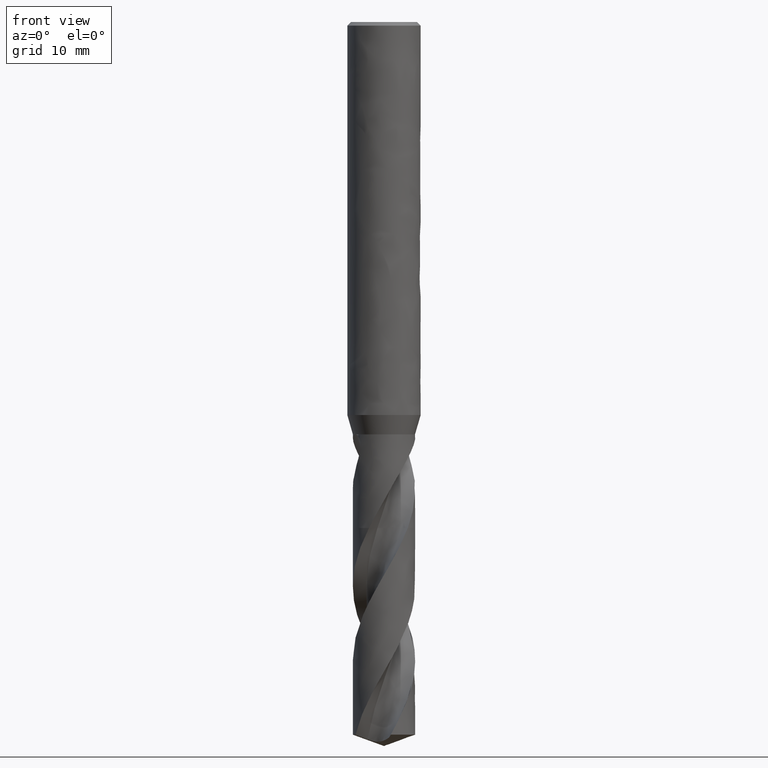
[diagram: clean part render]
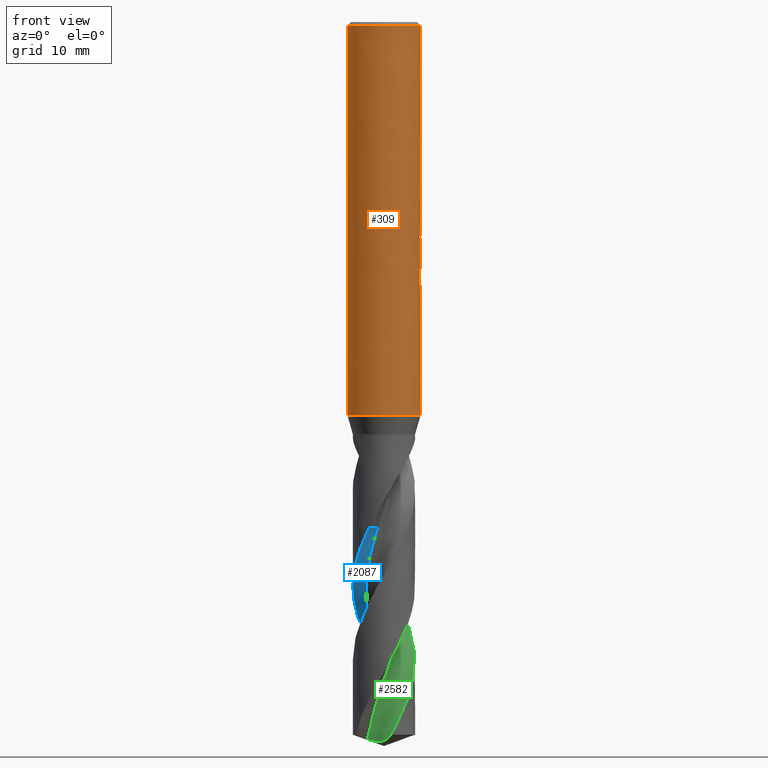
[diagram: same view with three faces highlighted in distinct colors, each labeled with its STEP entity id]
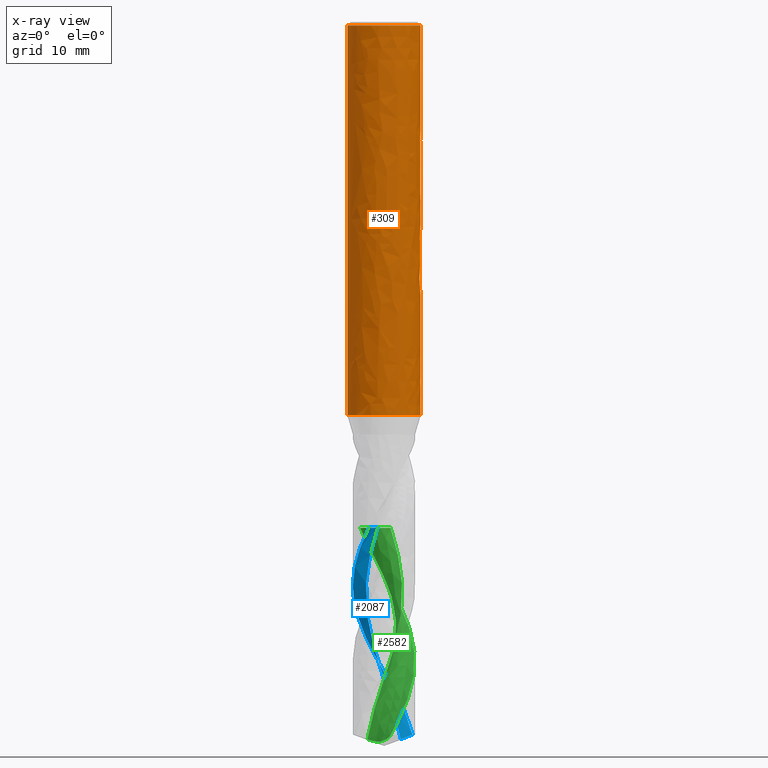
[diagram: x-ray of the same camera — body ghosted, the three highlighted faces saturated]
A machine part, front view with three faces highlighted in distinct colors.
The next image is the same camera in x-ray (body ghosted, the three faces saturated) — at least one of them is partly hidden behind the body in this view.
Their STEP definitions:

[orange] entity #309 — the highlighted face is a freeform B-spline surface patch.
#201 = VERTEX_POINT('', #202);
#202 = CARTESIAN_POINT('', (-4., 2.87112318826101E-15, -42.889));
#208 = EDGE_CURVE('', #201, #201, #209, .T.);
#209 = CIRCLE('', #210, 4.);
#210 = AXIS2_PLACEMENT_3D('', #211, #212, #213);
#211 = CARTESIAN_POINT('', (1.60807993296461E-31, 2.62619382843154E-15, -42.889));
#212 = DIRECTION('', (3.74939945665464E-33, 6.12323399573677E-17, -1.));
#213 = DIRECTION('', (-1., 6.12323399573677E-17, 0.));
#258 = VERTEX_POINT('', #259);
#259 = CARTESIAN_POINT('', (-4., 2.69422295812418E-16, -0.399999999999999));
#275 = EDGE_CURVE('', #258, #258, #276, .T.);
#276 = CIRCLE('', #277, 4.);
#277 = AXIS2_PLACEMENT_3D('', #278, #279, #280);
#278 = CARTESIAN_POINT('', (1.49975978266185E-33, 2.44929359829471E-17, -0.399999999999999));
#279 = DIRECTION('', (3.74939945665464E-33, 6.12323399573677E-17, -1.));
#280 = DIRECTION('', (-1., 6.12323399573677E-17, 0.));
#309 = ADVANCED_FACE('', (#310, #321), #492, .T.);
#310 = FACE_OUTER_BOUND('', #311, .T.);
#311 = EDGE_LOOP('', (#312, #318, #319, #320));
#312 = ORIENTED_EDGE('', *, *, #313, .T.);
#313 = EDGE_CURVE('', #201, #258, #314, .T.);
#314 = LINE('', #315, #316);
#315 = CARTESIAN_POINT('', (-4., 2.87112318826101E-15, -42.889));
#316 = VECTOR('', #317, 42.489);
#317 = DIRECTION('', (0., -2.60170089244859E-15, 42.489));
#318 = ORIENTED_EDGE('', *, *, #275, .T.);
#319 = ORIENTED_EDGE('', *, *, #313, .F.);
#320 = ORIENTED_EDGE('', *, *, #208, .F.);
#321 = FACE_BOUND('', #322, .T.);
#322 = EDGE_LOOP('', (#323, #400, #408, #486));
#323 = ORIENTED_EDGE('', *, *, #324, .F.);
#324 = EDGE_CURVE('', #325, #327, #329, .T.);
#325 = VERTEX_POINT('', #326);
#326 = CARTESIAN_POINT('', (-2.75499546279118, 2.9, -15.25));
#327 = VERTEX_POINT('', #328);
#328 = CARTESIAN_POINT('', (2.75499546279118, 2.9, -15.25));
#329 = B_SPLINE_CURVE_WITH_KNOTS('', 3, (#330, #331, #332, #333, #334, #335, #336, #337, #338, #339, #340, #341, #342, #343, #344, #345, #346, #347, #348, #349, #350, #351, #352, #353, #354, #355, #356, #357, #358, #359, #360, #361, #362, #363, #364, #365, #366, #367, #368, #369, #370, #371, #372, #373, #374, #375, #376, #377, #378, #379, #380, #381, #382, #383, #384, #385, #386, #387, #388, #389, #390, #391, #392, #393, #394, #395, #396, #397, #398, #399), .UNSPECIFIED., .F., .U., (4, 3, 3, 3, 3, 3, 3, 3, 3, 3, 3, 3, 3, 3, 3, 3, 3, 3, 3, 3, 3, 3, 3, 4), (0., 0.0275651498824159, 0.323329754227839, 0.619223800657675, 0.91527020553321, 1.21149541087731, 1.50792863848376, 1.80460015310044, 2.10153821450145, 2.39876467460959, 2.69628978664823, 2.99410761532925, 3.29009749181973, 3.58608736831022, 3.88390519699124, 4.18143030902988, 4.47865676913802, 4.77559483053903, 5.07226634515571, 5.36869957276216, 5.66492477810626, 5.96097118298179, 6.25686522941162, 6.58019498363947), .UNSPECIFIED.);
#330 = CARTESIAN_POINT('', (-2.75499546279118, 2.9, -15.25));
#331 = CARTESIAN_POINT('', (-2.7495403313511, 2.90518236633323, -15.2447263857062));
#332 = CARTESIAN_POINT('', (-2.74406521982218, 2.91035442984719, -15.2394632556375));
#333 = CARTESIAN_POINT('', (-2.73857013102126, 2.91551601564427, -15.2342107877709));
#334 = CARTESIAN_POINT('', (-2.67960971281275, 2.97089806100157, -15.1778536089774));
#335 = CARTESIAN_POINT('', (-2.61831798837027, 3.0251023412273, -15.122694932689));
#336 = CARTESIAN_POINT('', (-2.55471049779374, 3.07789770337849, -15.0689699818493));
#337 = CARTESIAN_POINT('', (-2.49107516924727, 3.13071617154582, -15.0152215181567));
#338 = CARTESIAN_POINT('', (-2.42505948854959, 3.18217572696542, -14.9628558941227));
#339 = CARTESIAN_POINT('', (-2.35670846888833, 3.23201565476873, -14.9121384151249));
#340 = CARTESIAN_POINT('', (-2.28832225468618, 3.28188124558901, -14.8613948212512));
#341 = CARTESIAN_POINT('', (-2.21752118151808, 3.33018085032992, -14.8122447863892));
#342 = CARTESIAN_POINT('', (-2.14439231660006, 3.37662280874054, -14.7649851061665));
#343 = CARTESIAN_POINT('', (-2.07121928470315, 3.42309281628059, -14.7176968829422));
#344 = CARTESIAN_POINT('', (-1.99562068806062, 3.46776202565152, -14.6722411652482));
#345 = CARTESIAN_POINT('', (-1.91774147403305, 3.51030876687135, -14.628945286836));
#346 = CARTESIAN_POINT('', (-1.83980756982382, 3.55288538626901, -14.5856190041692));
#347 = CARTESIAN_POINT('', (-1.75947339354897, 3.59339861346788, -14.5443924446584));
#348 = CARTESIAN_POINT('', (-1.6769604661359, 3.63150156202879, -14.5056186025088));
#349 = CARTESIAN_POINT('', (-1.59438121093989, 3.66963513953696, -14.466813592116));
#350 = CARTESIAN_POINT('', (-1.50947809076678, 3.70541802112886, -14.4304006672663));
#351 = CARTESIAN_POINT('', (-1.42256919709379, 3.73848858223216, -14.3967478197978));
#352 = CARTESIAN_POINT('', (-1.33558221946264, 3.77158885583323, -14.363064736672));
#353 = CARTESIAN_POINT('', (-1.2464160027603, 3.80203429897799, -14.3320832286456));
#354 = CARTESIAN_POINT('', (-1.15550315645899, 3.82946634081219, -14.3041681800707));
#355 = CARTESIAN_POINT('', (-1.06450201178593, 3.85692502579669, -14.2762260192292));
#356 = CARTESIAN_POINT('', (-0.971551110465515, 3.88142225604713, -14.251297456619));
#357 = CARTESIAN_POINT('', (-0.877208103576913, 3.90262808156492, -14.2297182517981));
#358 = CARTESIAN_POINT('', (-0.782770301221157, 3.92385521460939, -14.2081173642804));
#359 = CARTESIAN_POINT('', (-0.686708873945094, 3.94183334457734, -14.1898226863132));
#360 = CARTESIAN_POINT('', (-0.589703064917674, 3.95629249363931, -14.1751089493317));
#361 = CARTESIAN_POINT('', (-0.492601817846335, 3.97076586816795, -14.1603807364101));
#362 = CARTESIAN_POINT('', (-0.394300865590994, 3.98174917183471, -14.1492040453995));
#363 = CARTESIAN_POINT('', (-0.29557837600709, 3.98906422906892, -14.1417601890779));
#364 = CARTESIAN_POINT('', (-0.197461827282701, 3.99633438779939, -14.1343620218057));
#365 = CARTESIAN_POINT('', (-0.0986632921634964, 4., -14.1306318677307));
#366 = CARTESIAN_POINT('', (-7.6571373978539E-16, 4., -14.1306318677307));
#367 = CARTESIAN_POINT('', (0.0986632921634943, 4., -14.1306318677307));
#368 = CARTESIAN_POINT('', (0.197461827282698, 3.99633438779939, -14.1343620218058));
#369 = CARTESIAN_POINT('', (0.295578376007086, 3.98906422906892, -14.141760189078));
#370 = CARTESIAN_POINT('', (0.39430086559099, 3.98174917183471, -14.1492040453995));
#371 = CARTESIAN_POINT('', (0.492601817846331, 3.97076586816795, -14.1603807364101));
#372 = CARTESIAN_POINT('', (0.58970306491767, 3.95629249363931, -14.1751089493317));
#373 = CARTESIAN_POINT('', (0.686708873945092, 3.94183334457734, -14.1898226863132));
#374 = CARTESIAN_POINT('', (0.782770301221155, 3.92385521460939, -14.2081173642804));
#375 = CARTESIAN_POINT('', (0.877208103576911, 3.90262808156492, -14.2297182517981));
#376 = CARTESIAN_POINT('', (0.971551110465513, 3.88142225604713, -14.251297456619));
#377 = CARTESIAN_POINT('', (1.06450201178592, 3.85692502579669, -14.2762260192292));
#378 = CARTESIAN_POINT('', (1.15550315645899, 3.82946634081219, -14.3041681800707));
#379 = CARTESIAN_POINT('', (1.2464160027603, 3.80203429897799, -14.3320832286455));
#380 = CARTESIAN_POINT('', (1.33558221946264, 3.77158885583323, -14.363064736672));
#381 = CARTESIAN_POINT('', (1.42256919709379, 3.73848858223216, -14.3967478197978));
#382 = CARTESIAN_POINT('', (1.50947809076678, 3.70541802112886, -14.4304006672663));
#383 = CARTESIAN_POINT('', (1.59438121093989, 3.66963513953696, -14.466813592116));
#384 = CARTESIAN_POINT('', (1.6769604661359, 3.63150156202879, -14.5056186025088));
#385 = CARTESIAN_POINT('', (1.75947339354896, 3.59339861346788, -14.5443924446584));
#386 = CARTESIAN_POINT('', (1.83980756982381, 3.55288538626901, -14.5856190041692));
#387 = CARTESIAN_POINT('', (1.91774147403304, 3.51030876687135, -14.628945286836));
#388 = CARTESIAN_POINT('', (1.99562068806062, 3.46776202565152, -14.6722411652482));
#389 = CARTESIAN_POINT('', (2.07121928470314, 3.42309281628059, -14.7176968829422));
#390 = CARTESIAN_POINT('', (2.14439231660005, 3.37662280874054, -14.7649851061665));
#391 = CARTESIAN_POINT('', (2.21752118151808, 3.33018085032992, -14.8122447863892));
#392 = CARTESIAN_POINT('', (2.28832225468618, 3.28188124558901, -14.8613948212512));
#393 = CARTESIAN_POINT('', (2.35670846888833, 3.23201565476873, -14.9121384151248));
#394 = CARTESIAN_POINT('', (2.42505948854959, 3.18217572696543, -14.9628558941227));
#395 = CARTESIAN_POINT('', (2.49107516924727, 3.13071617154583, -15.0152215181567));
#396 = CARTESIAN_POINT('', (2.55471049779373, 3.07789770337849, -15.0689699818493));
#397 = CARTESIAN_POINT('', (2.62424618256803, 3.02018183333213, -15.1277020779003));
#398 = CARTESIAN_POINT('', (2.69100864192036, 2.9607873797164, -15.1881423130012));
#399 = CARTESIAN_POINT('', (2.75499546279118, 2.9, -15.25));
#400 = ORIENTED_EDGE('', *, *, #401, .T.);
#401 = EDGE_CURVE('', #325, #402, #404, .T.);
#402 = VERTEX_POINT('', #403);
#403 = CARTESIAN_POINT('', (-2.75499546279118, 2.9, -20.75));
#404 = LINE('', #405, #406);
#405 = CARTESIAN_POINT('', (-2.75499546279118, 2.9, -15.25));
#406 = VECTOR('', #407, 5.5);
#407 = DIRECTION('', (0., -4.44089209850063E-16, -5.5));
#408 = ORIENTED_EDGE('', *, *, #409, .T.);
#409 = EDGE_CURVE('', #402, #410, #412, .T.);
#410 = VERTEX_POINT('', #411);
#411 = CARTESIAN_POINT('', (2.75499546279118, 2.9, -20.75));
#412 = B_SPLINE_CURVE_WITH_KNOTS('', 3, (#413, #414, #415, #416, #417, #418, #419, #420, #421, #422, #423, #424, #425, #426, #427, #428, #429, #430, #431, #432, #433, #434, #435, #436, #437, #438, #439, #440, #441, #442, #443, #444, #445, #446, #447, #448, #449, #450, #451, #452, #453, #454, #455, #456, #457, #458, #459, #460, #461, #462, #463, #464, #465, #466, #467, #468, #469, #470, #471, #472, #473, #474, #475, #476, #477, #478, #479, #480, #481, #482, #483, #484, #485), .UNSPECIFIED., .F., .U., (4, 3, 3, 3, 3, 3, 3, 3, 3, 3, 3, 3, 3, 3, 3, 3, 3, 3, 3, 3, 3, 3, 3, 3, 4), (0., 0.443422422205695, 0.73886071397259, 1.03418677767532, 1.32938252694556, 1.62442725505235, 1.91929816542727, 2.21397155727197, 2.50842487936361, 2.80263970976592, 2.9989408510487, 3.29007345814309, 3.4872474966482, 3.68530175003223, 3.8832746562229, 4.08116298771897, 4.27896576611938, 4.57609603156437, 4.872944030885, 5.16953426674176, 5.46589607815955, 5.76205965537001, 6.05805344567497, 6.35390278155855, 6.5804241821135), .UNSPECIFIED.);
#413 = CARTESIAN_POINT('', (-2.75499546279118, 2.9, -20.75));
#414 = CARTESIAN_POINT('', (-2.66724235399505, 2.98336531606178, -20.8348331619419));
#415 = CARTESIAN_POINT('', (-2.57422027727393, 3.06415258604797, -20.9170428851383));
#416 = CARTESIAN_POINT('', (-2.47599571183059, 3.14156732141782, -20.9958206921756));
#417 = CARTESIAN_POINT('', (-2.41055180017683, 3.19314630351234, -21.048307845677));
#418 = CARTESIAN_POINT('', (-2.34271971299792, 3.24329045867949, -21.0993349086891));
#419 = CARTESIAN_POINT('', (-2.27255949630797, 3.2917280166716, -21.1486253257994));
#420 = CARTESIAN_POINT('', (-2.20242593136059, 3.34014717470163, -21.1978970189722));
#421 = CARTESIAN_POINT('', (-2.12988274348655, 3.38691749931397, -21.2454908470694));
#422 = CARTESIAN_POINT('', (-2.05503738469365, 3.43173736575396, -21.2910998745108));
#423 = CARTESIAN_POINT('', (-1.98022505187324, 3.47653745515367, -21.3366887766898));
#424 = CARTESIAN_POINT('', (-1.90301056261523, 3.519448580392, -21.3803554549731));
#425 = CARTESIAN_POINT('', (-1.82356518022225, 3.56014185580879, -21.4217652328814));
#426 = CARTESIAN_POINT('', (-1.74416044182265, 3.60081431268123, -21.4631538256852));
#427 = CARTESIAN_POINT('', (-1.66240289395493, 3.63933314650406, -21.502350875752));
#428 = CARTESIAN_POINT('', (-1.5785460472355, 3.67534928636151, -21.5390011659373));
#429 = CARTESIAN_POINT('', (-1.4947386025406, 3.71134420827083, -21.5756298645816));
#430 = CARTESIAN_POINT('', (-1.40868478848897, 3.74490161629374, -21.6097781310747));
#431 = CARTESIAN_POINT('', (-1.32073858060278, 3.77566545150764, -21.6410836372246));
#432 = CARTESIAN_POINT('', (-1.23285128326053, 3.80640867964468, -21.6723681734607));
#433 = CARTESIAN_POINT('', (-1.14289702732146, 3.83442177081428, -21.7008745021349));
#434 = CARTESIAN_POINT('', (-1.0513442293651, 3.85936203424631, -21.726253898586));
#435 = CARTESIAN_POINT('', (-0.959859805419417, 3.88428367164094, -21.7516143410437));
#436 = CARTESIAN_POINT('', (-0.86657420210287, 3.90619059125, -21.7739069843951));
#437 = CARTESIAN_POINT('', (-0.772074452714004, 3.92478038104902, -21.7928240919284));
#438 = CARTESIAN_POINT('', (-0.677651243147183, 3.94335511409697, -21.8117258776005));
#439 = CARTESIAN_POINT('', (-0.581785251603102, 3.95866134366949, -21.827301609972));
#440 = CARTESIAN_POINT('', (-0.485170882582415, 3.97046712802094, -21.8393152634078));
#441 = CARTESIAN_POINT('', (-0.420709445077232, 3.97834398772498, -21.8473308140761));
#442 = CARTESIAN_POINT('', (-0.355823858528567, 3.98467660623896, -21.8537749334927));
#443 = CARTESIAN_POINT('', (-0.29074100732762, 3.98941971552983, -21.8586015565727));
#444 = CARTESIAN_POINT('', (-0.194217166337957, 3.99645418188373, -21.8657598815401));
#445 = CARTESIAN_POINT('', (-0.0970442023647977, 4., -21.8693681322693));
#446 = CARTESIAN_POINT('', (7.88598494689829E-16, 4., -21.8693681322693));
#447 = CARTESIAN_POINT('', (0.0657246795017055, 4., -21.8693681322693));
#448 = CARTESIAN_POINT('', (0.131489701268735, 3.99837709119683, -21.8677166482731));
#449 = CARTESIAN_POINT('', (0.197052250671389, 3.99514335293558, -21.8644259723115));
#450 = CARTESIAN_POINT('', (0.262907481260273, 3.9918951787752, -21.8611206062723));
#451 = CARTESIAN_POINT('', (0.328639219249591, 3.98701784499982, -21.8561573953644));
#452 = CARTESIAN_POINT('', (0.394008672407502, 3.98054734503531, -21.8495729667643));
#453 = CARTESIAN_POINT('', (0.459351276247841, 3.97407950271135, -21.8429912425989));
#454 = CARTESIAN_POINT('', (0.524410480681416, 3.96601220841524, -21.8347819042819));
#455 = CARTESIAN_POINT('', (0.588961634304912, 3.95640293616776, -21.8250034378018));
#456 = CARTESIAN_POINT('', (0.653485211457424, 3.94679776903386, -21.8152291487156));
#457 = CARTESIAN_POINT('', (0.717576028180888, 3.93564105020771, -21.8038759891568));
#458 = CARTESIAN_POINT('', (0.781028734224064, 3.92300829929231, -21.7910208084317));
#459 = CARTESIAN_POINT('', (0.844454007748156, 3.91038100989625, -21.7781711853891));
#460 = CARTESIAN_POINT('', (0.907311809061336, 3.8962653083265, -21.7638069431147));
#461 = CARTESIAN_POINT('', (0.969419520729966, 3.88075067388098, -21.7480191364037));
#462 = CARTESIAN_POINT('', (1.06271487787062, 3.85744530128533, -21.7243034169544));
#463 = CARTESIAN_POINT('', (1.1544914336299, 3.83093536499364, -21.6973267097968));
#464 = CARTESIAN_POINT('', (1.24423289780537, 3.8015634278569, -21.6674376094205));
#465 = CARTESIAN_POINT('', (1.33388910989368, 3.77221939330641, -21.6375769029223));
#466 = CARTESIAN_POINT('', (1.42170364387654, 3.73995917363383, -21.6047486648846));
#467 = CARTESIAN_POINT('', (1.50728302186432, 3.70514478691452, -21.5693212875772));
#468 = CARTESIAN_POINT('', (1.59278808829549, 3.67036063074058, -21.5339246730963));
#469 = CARTESIAN_POINT('', (1.67622194287628, 3.6329637909704, -21.4958693724724));
#470 = CARTESIAN_POINT('', (1.75730026868264, 3.59331264513516, -21.4555200733306));
#471 = CARTESIAN_POINT('', (1.83831615052138, 3.55369203736101, -21.4152018499456));
#472 = CARTESIAN_POINT('', (1.91711291663926, 3.51175746479679, -21.3725289188831));
#473 = CARTESIAN_POINT('', (1.99349629595742, 3.46784839893619, -21.3278467288449));
#474 = CARTESIAN_POINT('', (2.06982858300231, 3.42396870352256, -21.2831944263906));
#475 = CARTESIAN_POINT('', (2.14385956949714, 3.37805601840627, -21.2364733385851));
#476 = CARTESIAN_POINT('', (2.21546518868423, 3.33042249537931, -21.1880011133995));
#477 = CARTESIAN_POINT('', (2.28702975725797, 3.28281628006029, -21.1395566767395));
#478 = CARTESIAN_POINT('', (2.35626036779493, 3.23343335123207, -21.0893042432772));
#479 = CARTESIAN_POINT('', (2.42308530146577, 3.18255520326367, -21.0375302637639));
#480 = CARTESIAN_POINT('', (2.48987762243511, 3.13170188545614, -20.9857815516058));
#481 = CARTESIAN_POINT('', (2.55433855419147, 3.07930087109133, -20.9324578919889));
#482 = CARTESIAN_POINT('', (2.61643396066481, 3.02560296957151, -20.8778145104152));
#483 = CARTESIAN_POINT('', (2.66397822301836, 2.98448838054326, -20.8359760006611));
#484 = CARTESIAN_POINT('', (2.710166973946, 2.9425869942663, -20.7933368402098));
#485 = CARTESIAN_POINT('', (2.75499546279118, 2.9, -20.75));
#486 = ORIENTED_EDGE('', *, *, #487, .F.);
#487 = EDGE_CURVE('', #327, #410, #488, .T.);
#488 = LINE('', #489, #490);
#489 = CARTESIAN_POINT('', (2.75499546279118, 2.9, -15.25));
#490 = VECTOR('', #491, 5.5);
#491 = DIRECTION('', (1.77635683940025E-15, 4.44089209850063E-16, -5.5));
#492 = (
   BOUNDED_SURFACE ()
   B_SPLINE_SURFACE (1, 2, ((#493, #494, #495, #496, #497, #498, #499, #500, #501), (#502, #503, #504, #505, #506, #507, #508, #509, #510)), .UNSPECIFIED., .F., .T., .U.)
   B_SPLINE_SURFACE_WITH_KNOTS ((2, 2), (3, 2, 2, 2, 3), (0., 1.), (0., 6.28318530717959, 12.5663706143592, 18.8495559215388, 25.1327412287183), .UNSPECIFIED.)
   GEOMETRIC_REPRESENTATION_ITEM ()
   RATIONAL_B_SPLINE_SURFACE (((1., 0.707106781186548, 1., 0.707106781186548, 1., 0.707106781186548, 1., 0.707106781186548, 1.), (1., 0.707106781186548, 1., 0.707106781186548, 1., 0.707106781186548, 1., 0.707106781186548, 1.)))
   REPRESENTATION_ITEM ('')
   SURFACE ()
);
#493 = CARTESIAN_POINT('', (-4., 2.87112318826101E-15, -42.889));
#494 = CARTESIAN_POINT('', (-4., 4., -42.889));
#495 = CARTESIAN_POINT('', (1.97215226305253E-31, 4., -42.889));
#496 = CARTESIAN_POINT('', (4., 4., -42.889));
#497 = CARTESIAN_POINT('', (4., 2.87112318826101E-15, -42.889));
#498 = CARTESIAN_POINT('', (4., -4., -42.889));
#499 = CARTESIAN_POINT('', (4.89858719658941E-16, -4., -42.889));
#500 = CARTESIAN_POINT('', (-4., -4., -42.889));
#501 = CARTESIAN_POINT('', (-4., 2.87112318826101E-15, -42.889));
#502 = CARTESIAN_POINT('', (-4., 2.69422295812418E-16, -0.399999999999999));
#503 = CARTESIAN_POINT('', (-4., 4., -0.399999999999998));
#504 = CARTESIAN_POINT('', (0., 4., -0.399999999999998));
#505 = CARTESIAN_POINT('', (4., 4., -0.399999999999998));
#506 = CARTESIAN_POINT('', (4., 2.69422295812418E-16, -0.399999999999999));
#507 = CARTESIAN_POINT('', (4., -4., -0.399999999999999));
#508 = CARTESIAN_POINT('', (4.89858719658941E-16, -4., -0.399999999999999));
#509 = CARTESIAN_POINT('', (-4., -4., -0.399999999999999));
#510 = CARTESIAN_POINT('', (-4., 2.69422295812418E-16, -0.399999999999999));

[blue] entity #2087 — the highlighted face is a freeform B-spline surface patch.
#1897 = VERTEX_POINT('', #1898);
#1898 = CARTESIAN_POINT('', (-1.63663427648705, -2.98017251933973, -55.2));
#1907 = EDGE_CURVE('', #1897, #1908, #1910, .T.);
#1908 = VERTEX_POINT('', #1909);
#1909 = CARTESIAN_POINT('', (-0.720814229882543, -1.9036234756146, -55.2));
#1910 = LINE('', #1911, #1912);
#1911 = CARTESIAN_POINT('', (-1.63663427648705, -2.98017251933973, -55.2));
#1912 = VECTOR('', #1913, 1.41339456674638);
#1913 = DIRECTION('', (0.915820046604507, 1.07654904372514, 0.));
#2087 = ADVANCED_FACE('', (#2088), #2305, .T.);
#2088 = FACE_OUTER_BOUND('', #2089, .T.);
#2089 = EDGE_LOOP('', (#2090, #2091, #2133, #2232, #2262));
#2090 = ORIENTED_EDGE('', *, *, #1907, .F.);
#2091 = ORIENTED_EDGE('', *, *, #2092, .T.);
#2092 = EDGE_CURVE('', #1897, #2093, #2095, .T.);
#2093 = VERTEX_POINT('', #2094);
#2094 = CARTESIAN_POINT('', (-3.4, 3.97619611698886E-15, -61.5362105017911));
#2095 = B_SPLINE_CURVE_WITH_KNOTS('', 3, (#2096, #2097, #2098, #2099, #2100, #2101, #2102, #2103, #2104, #2105, #2106, #2107, #2108, #2109, #2110, #2111, #2112, #2113, #2114, #2115, #2116, #2117, #2118, #2119, #2120, #2121, #2122, #2123, #2124, #2125, #2126, #2127, #2128, #2129, #2130, #2131, #2132), .UNSPECIFIED., .F., .U., (4, 3, 3, 3, 3, 3, 3, 3, 3, 3, 3, 3, 4), (9.70703675072014, 10.2014072423691, 10.866757995747, 11.5319093291863, 12.196866588733, 12.8616303497133, 13.5262012621766, 14.190578851577, 14.8547617157593, 15.5187475006598, 16.1825328275403, 16.8461132399783, 17.010284001813), .UNSPECIFIED.);
#2096 = CARTESIAN_POINT('', (-1.63663427648705, -2.98017251933973, -55.2));
#2097 = CARTESIAN_POINT('', (-1.70856242852193, -2.94067142391633, -55.3429048722675));
#2098 = CARTESIAN_POINT('', (-1.77907176838687, -2.89855733733189, -55.485864508618));
#2099 = CARTESIAN_POINT('', (-1.84793851128233, -2.85396623289759, -55.6287798795229));
#2100 = CARTESIAN_POINT('', (-1.94062312746026, -2.79395309410697, -55.8211231753043));
#2101 = CARTESIAN_POINT('', (-2.03040312510919, -2.72940501323507, -56.0135262162039));
#2102 = CARTESIAN_POINT('', (-2.11679812716425, -2.66067015784255, -56.2058784493848));
#2103 = CARTESIAN_POINT('', (-2.20316723477804, -2.59195590376531, -56.3981730304622));
#2104 = CARTESIAN_POINT('', (-2.28620281701302, -2.51901824857544, -56.5905305923185));
#2105 = CARTESIAN_POINT('', (-2.36546530504688, -2.44224771278825, -56.7828382109943));
#2106 = CARTESIAN_POINT('', (-2.44470466634429, -2.36549957665054, -56.9750897192991));
#2107 = CARTESIAN_POINT('', (-2.5202201530455, -2.28487527049891, -57.1674034701296));
#2108 = CARTESIAN_POINT('', (-2.59161255997252, -2.20080538417023, -57.3596667627019));
#2109 = CARTESIAN_POINT('', (-2.66298419213815, -2.11675996167326, -57.5518741078114));
#2110 = CARTESIAN_POINT('', (-2.73027657314356, -2.02922219674273, -57.7441437675231));
#2111 = CARTESIAN_POINT('', (-2.79313481617779, -1.93865878861018, -57.9363632171758));
#2112 = CARTESIAN_POINT('', (-2.85597482398372, -1.84812165299723, -58.1285269038072));
#2113 = CARTESIAN_POINT('', (-2.91441977492634, -1.75450807782297, -58.3207529110611));
#2114 = CARTESIAN_POINT('', (-2.96816247680276, -1.65831586596164, -58.5129286180016));
#2115 = CARTESIAN_POINT('', (-3.02188954497698, -1.56215163632564, -58.7050484212069));
#2116 = CARTESIAN_POINT('', (-3.07094808013231, -1.46335485196855, -58.8972304972141));
#2117 = CARTESIAN_POINT('', (-3.11508110299258, -1.36244989697916, -59.0893623322949));
#2118 = CARTESIAN_POINT('', (-3.15920119071982, -1.26157451664685, -59.2814378546493));
#2119 = CARTESIAN_POINT('', (-3.19842401295912, -1.15853426171093, -59.4735756049286));
#2120 = CARTESIAN_POINT('', (-3.23254504214606, -1.05387501654463, -59.665663159326));
#2121 = CARTESIAN_POINT('', (-3.26665594679007, -0.949246826333198, -59.8576937166534));
#2122 = CARTESIAN_POINT('', (-3.29568764502124, -0.842940647915854, -60.0497864042192));
#2123 = CARTESIAN_POINT('', (-3.3194897307651, -0.735518815085743, -60.2418289971397));
#2124 = CARTESIAN_POINT('', (-3.34328463063377, -0.628129413022078, -60.4338136121957));
#2125 = CARTESIAN_POINT('', (-3.36186672299909, -0.519563464233496, -60.625860216583));
#2126 = CARTESIAN_POINT('', (-3.37514093242361, -0.410394549523946, -60.8178568748321));
#2127 = CARTESIAN_POINT('', (-3.38841104402144, -0.301259335901783, -61.0097942625812));
#2128 = CARTESIAN_POINT('', (-3.39638418153706, -0.191458756534332, -61.2017934394399));
#2129 = CARTESIAN_POINT('', (-3.39902132123575, -0.0815724082360501, -61.3937428793506));
#2130 = CARTESIAN_POINT('', (-3.39967375344334, -0.0543863654035212, -61.4412314507328));
#2131 = CARTESIAN_POINT('', (-3.4, -0.0271926228491514, -61.4887212159765));
#2132 = CARTESIAN_POINT('', (-3.4, 3.54273208842916E-15, -61.5362105017911));
#2133 = ORIENTED_EDGE('', *, *, #2134, .F.);
#2134 = EDGE_CURVE('', #2135, #2093, #2137, .T.);
#2135 = VERTEX_POINT('', #2136);
#2136 = CARTESIAN_POINT('', (3.1064099180173, 1.38210615411543, -77.7625012034949));
#2137 = B_SPLINE_CURVE_WITH_KNOTS('', 3, (#2138, #2139, #2140, #2141, #2142, #2143, #2144, #2145, #2146, #2147, #2148, #2149, #2150, #2151, #2152, #2153, #2154, #2155, #2156, #2157, #2158, #2159, #2160, #2161, #2162, #2163, #2164, #2165, #2166, #2167, #2168, #2169, #2170, #2171, #2172, #2173, #2174, #2175, #2176, #2177, #2178, #2179, #2180, #2181, #2182, #2183, #2184, #2185, #2186, #2187, #2188, #2189, #2190, #2191, #2192, #2193, #2194, #2195, #2196, #2197, #2198, #2199, #2200, #2201, #2202, #2203, #2204, #2205, #2206, #2207, #2208, #2209, #2210, #2211, #2212, #2213, #2214, #2215, #2216, #2217, #2218, #2219, #2220, #2221, #2222, #2223, #2224, #2225, #2226, #2227, #2228, #2229, #2230, #2231), .UNSPECIFIED., .F., .U., (4, 3, 3, 3, 3, 3, 3, 3, 3, 3, 3, 3, 3, 3, 3, 3, 3, 3, 3, 3, 3, 3, 3, 3, 3, 3, 3, 3, 3, 3, 3, 4), (0., 0.665660850593775, 1.33112510738442, 1.9963960021183, 2.66147587864301, 3.32636617980339, 3.99106742414364, 4.65557924434695, 5.31990037242203, 5.98402861825828, 6.64796082906768, 7.3116928290033, 7.75439502943726, 7.88570074054605, 7.94407962779482, 8.61065969756747, 9.27701310527935, 9.94314856492784, 10.6090733076717, 11.2747932472377, 11.9403131092594, 12.6056365308782, 13.2707661352571, 13.9357035843576, 14.6004496122965, 15.2650040407352, 15.9293657770223, 16.5935327989156, 17.2575021583176, 17.9212699087829, 18.5848310161772, 18.6799359911957), .UNSPECIFIED.);
#2138 = CARTESIAN_POINT('', (3.10640991801731, 1.38210615411542, -77.7625012034949));
#2139 = CARTESIAN_POINT('', (3.06183161597814, 1.48229996279684, -77.5696079834032));
#2140 = CARTESIAN_POINT('', (3.01238327933041, 1.58037263218199, -77.3766655642521));
#2141 = CARTESIAN_POINT('', (2.95832147716959, 1.67580847286233, -77.1837844077621));
#2142 = CARTESIAN_POINT('', (2.90427564142061, 1.77121612787597, -76.9909602160765));
#2143 = CARTESIAN_POINT('', (2.8455884951512, 1.86404248558441, -76.7980868116164));
#2144 = CARTESIAN_POINT('', (2.78256497221912, 1.95379942045728, -76.6052748044808));
#2145 = CARTESIAN_POINT('', (2.71955976185289, 2.04353027491282, -76.4125188221818));
#2146 = CARTESIAN_POINT('', (2.65218543106488, 2.13024374003034, -76.2197134118104));
#2147 = CARTESIAN_POINT('', (2.58079216804039, 2.21348408292931, -76.0269695434372));
#2148 = CARTESIAN_POINT('', (2.50941940405376, 2.29670052515659, -75.8342810173146));
#2149 = CARTESIAN_POINT('', (2.43399028822337, 2.37649215784475, -75.6415430116195));
#2150 = CARTESIAN_POINT('', (2.35489721939434, 2.45243941537581, -75.4488665565657));
#2151 = CARTESIAN_POINT('', (2.27582669537213, 2.5283650247868, -75.2562450222974));
#2152 = CARTESIAN_POINT('', (2.19305026456807, 2.60049072706229, -75.0635740448302));
#2153 = CARTESIAN_POINT('', (2.10699903966372, 2.66843681710027, -74.8709645514544));
#2154 = CARTESIAN_POINT('', (2.02097228281209, 2.73636358715163, -74.6784098252159));
#2155 = CARTESIAN_POINT('', (1.9316244484355, 2.80015111480684, -74.4858057611602));
#2156 = CARTESIAN_POINT('', (1.83942152201864, 2.85946296782012, -74.2932630489295));
#2157 = CARTESIAN_POINT('', (1.74724487125557, 2.91875791835779, -74.100775206819));
#2158 = CARTESIAN_POINT('', (1.65216276593215, 2.97361316236926, -73.9082381756776));
#2159 = CARTESIAN_POINT('', (1.55467184555884, 3.02373865481571, -73.7157623306546));
#2160 = CARTESIAN_POINT('', (1.45720890173993, 3.07384976296298, -73.5233417196055));
#2161 = CARTESIAN_POINT('', (1.35728305233256, 3.11926232912474, -73.3308720859043));
#2162 = CARTESIAN_POINT('', (1.25541701960612, 3.15973544887596, -73.138463463207));
#2163 = CARTESIAN_POINT('', (1.15358056316081, 3.20019681746405, -72.9461107053683));
#2164 = CARTESIAN_POINT('', (1.04974657035236, 3.23574481940343, -72.7537090797695));
#2165 = CARTESIAN_POINT('', (0.94445892982319, 3.26619003272582, -72.5613683108331));
#2166 = CARTESIAN_POINT('', (0.839202367727392, 3.29662625933781, -72.3690843163646));
#2167 = CARTESIAN_POINT('', (0.732432145456553, 3.3219802941041, -72.176751567795));
#2168 = CARTESIAN_POINT('', (0.624708087051406, 3.34211606710078, -71.9844795725125));
#2169 = CARTESIAN_POINT('', (0.517016513179331, 3.36224576809095, -71.7922655574629));
#2170 = CARTESIAN_POINT('', (0.40830918069043, 3.37717202900525, -71.6000028285237));
#2171 = CARTESIAN_POINT('', (0.299156337707267, 3.3868134707437, -71.407800833226));
#2172 = CARTESIAN_POINT('', (0.226352549767322, 3.39324421006828, -71.2796041420098));
#2173 = CARTESIAN_POINT('', (0.153327291185846, 3.39732746318454, -71.1513938110713));
#2174 = CARTESIAN_POINT('', (0.0802507996988821, 3.39905278116534, -71.0232025974283));
#2175 = CARTESIAN_POINT('', (0.0585762729614383, 3.39956451140778, -70.985181014412));
#2176 = CARTESIAN_POINT('', (0.0368961937599292, 3.39986893171991, -70.9471592408828));
#2177 = CARTESIAN_POINT('', (0.0152150366301777, 3.39996595610315, -70.9091381182799));
#2178 = CARTESIAN_POINT('', (0.0055755333914193, 3.40000909341592, -70.8922338205859));
#2179 = CARTESIAN_POINT('', (-0.00406425230930882, 3.40001123625907, -70.8753295296395));
#2180 = CARTESIAN_POINT('', (-0.013703926843714, 3.39997238259211, -70.8584253192377));
#2181 = CARTESIAN_POINT('', (-0.123771371198177, 3.39952874481052, -70.6654101680398));
#2182 = CARTESIAN_POINT('', (-0.233859507864194, 3.39373385365256, -70.4723451748769));
#2183 = CARTESIAN_POINT('', (-0.343386286615723, 3.38261523945079, -70.2793421985587));
#2184 = CARTESIAN_POINT('', (-0.452875822181462, 3.37150040599214, -70.0864048504439));
#2185 = CARTESIAN_POINT('', (-0.561866807061262, 3.35505914581792, -69.893417500651));
#2186 = CARTESIAN_POINT('', (-0.669783382635566, 3.33337519945557, -69.7004922887027));
#2187 = CARTESIAN_POINT('', (-0.777664661311285, 3.31169834538697, -69.5076301779195));
#2188 = CARTESIAN_POINT('', (-0.884533364065541, 3.28476995422193, -69.314717995213));
#2189 = CARTESIAN_POINT('', (-0.989824904818471, 3.25272910919449, -69.1218679867541));
#2190 = CARTESIAN_POINT('', (-1.09508313897103, 3.22069839956456, -68.9290789820389));
#2191 = CARTESIAN_POINT('', (-1.19882475787251, 3.18354034328834, -68.7362399100765));
#2192 = CARTESIAN_POINT('', (-1.30050148470655, 3.14144805595701, -68.5434629790839));
#2193 = CARTESIAN_POINT('', (-1.40214694116508, 3.09936871398371, -68.3507453360642));
#2194 = CARTESIAN_POINT('', (-1.50178640189643, 3.05233430632342, -68.157977689429));
#2195 = CARTESIAN_POINT('', (-1.5988928560285, 3.00059021443133, -67.9652720971625));
#2196 = CARTESIAN_POINT('', (-1.69597012548436, 2.9488616738698, -67.7726244212349));
#2197 = CARTESIAN_POINT('', (-1.79057121368545, 2.89239679216217, -67.5799268468451));
#2198 = CARTESIAN_POINT('', (-1.88219521150828, 2.83149098281724, -67.3872912047512));
#2199 = CARTESIAN_POINT('', (-1.97379216482639, 2.77060315093985, -67.1947124226029));
#2200 = CARTESIAN_POINT('', (-2.06246630543165, 2.70524207782772, -67.0020838697007));
#2201 = CARTESIAN_POINT('', (-2.14774749497664, 2.63575049991868, -66.809517110962));
#2202 = CARTESIAN_POINT('', (-2.23300384101809, 2.56627916579694, -66.6170064493882));
#2203 = CARTESIAN_POINT('', (-2.31491844081511, 2.4926395950828, -66.4244461467464));
#2204 = CARTESIAN_POINT('', (-2.39305637818993, 2.41521865900471, -66.23194750513));
#2205 = CARTESIAN_POINT('', (-2.47117174159269, 2.33782008975772, -66.0395044761788));
#2206 = CARTESIAN_POINT('', (-2.54555801555446, 2.2565973423914, -65.8470119155429));
#2207 = CARTESIAN_POINT('', (-2.61581968431555, 2.17197775751671, -65.6545809105788));
#2208 = CARTESIAN_POINT('', (-2.6860611262564, 2.08738253279688, -65.4622053023541));
#2209 = CARTESIAN_POINT('', (-2.75222133303045, 1.99934303634025, -65.2697802274339));
#2210 = CARTESIAN_POINT('', (-2.81394803473436, 1.90832294379506, -65.0774166552561));
#2211 = CARTESIAN_POINT('', (-2.87565694497402, 1.81732908593725, -64.8851085279592));
#2212 = CARTESIAN_POINT('', (-2.93297096242149, 1.72330317774639, -64.6927509285373));
#2213 = CARTESIAN_POINT('', (-2.98558451254, 1.62674064265983, -64.5004548579668));
#2214 = CARTESIAN_POINT('', (-3.03818280699585, 1.530206106548, -64.3082145449716));
#2215 = CARTESIAN_POINT('', (-3.08611398688788, 1.43108022241581, -64.1159246589198));
#2216 = CARTESIAN_POINT('', (-3.12912215481455, 1.32988516054913, -63.9236964296508));
#2217 = CARTESIAN_POINT('', (-3.17211771769659, 1.22871975742714, -63.7315245395734));
#2218 = CARTESIAN_POINT('', (-3.21021798828816, 1.12542799140658, -63.5393029127692));
#2219 = CARTESIAN_POINT('', (-3.2432191099923, 1.02055367550215, -63.347143092874));
#2220 = CARTESIAN_POINT('', (-3.27621041024533, 0.91571057120245, -63.1550404615888));
#2221 = CARTESIAN_POINT('', (-3.30412450098908, 0.809225809701026, -62.9628879725936));
#2222 = CARTESIAN_POINT('', (-3.32681130661358, 0.701659839372683, -62.7707973839741));
#2223 = CARTESIAN_POINT('', (-3.34949122357268, 0.59412653058301, -62.5787651221114));
#2224 = CARTESIAN_POINT('', (-3.36695996255426, 0.485451354113163, -62.386682949999));
#2225 = CARTESIAN_POINT('', (-3.37912249140341, 0.376206310543512, -62.1946627060765));
#2226 = CARTESIAN_POINT('', (-3.39128123383433, 0.266995276958937, -62.0027022415765));
#2227 = CARTESIAN_POINT('', (-3.39814398947359, 0.157152528569606, -61.8106918731783));
#2228 = CARTESIAN_POINT('', (-3.39967157703927, 0.0472564098712073, -61.6187434051552));
#2229 = CARTESIAN_POINT('', (-3.39989051870968, 0.031505535525232, -61.5912323680363));
#2230 = CARTESIAN_POINT('', (-3.4, 0.0157528276524735, -61.5637212917184));
#2231 = CARTESIAN_POINT('', (-3.4, 3.54273208842916E-15, -61.5362105017911));
#2232 = ORIENTED_EDGE('', *, *, #2233, .F.);
#2233 = EDGE_CURVE('', #2234, #2135, #2236, .T.);
#2234 = VERTEX_POINT('', #2235);
#2235 = CARTESIAN_POINT('', (1.80948692399728, 0.93245576171629, -78.2590977822595));
#2236 = B_SPLINE_CURVE_WITH_KNOTS('', 3, (#2237, #2238, #2239, #2240, #2241, #2242, #2243, #2244, #2245, #2246, #2247, #2248, #2249, #2250, #2251, #2252, #2253, #2254, #2255, #2256, #2257, #2258, #2259, #2260, #2261), .UNSPECIFIED., .F., .U., (4, 3, 3, 3, 3, 3, 3, 3, 4), (0., 0.197268287326678, 0.394478043324993, 0.591650704004781, 0.788800923861305, 0.985938863943934, 1.18307165108047, 1.38020432587835, 1.46133690866563), .UNSPECIFIED.);
#2237 = CARTESIAN_POINT('', (1.80948692399728, 0.93245576171629, -78.2590977822595));
#2238 = CARTESIAN_POINT('', (1.86959499103296, 0.947566972817418, -78.2371310868335));
#2239 = CARTESIAN_POINT('', (1.92949239347762, 0.963385588340462, -78.2150621561884));
#2240 = CARTESIAN_POINT('', (1.98916484543027, 0.979904531998076, -78.1929219865856));
#2241 = CARTESIAN_POINT('', (2.04881959201362, 0.996418574332074, -78.1707883861763));
#2242 = CARTESIAN_POINT('', (2.10825699530529, 1.01363460201237, -78.1485805938871));
#2243 = CARTESIAN_POINT('', (2.16746078909389, 1.03154454821298, -78.1263220386927));
#2244 = CARTESIAN_POINT('', (2.22665344659981, 1.04945112553785, -78.104067670351));
#2245 = CARTESIAN_POINT('', (2.28561991916188, 1.06805358366241, -78.081759658394));
#2246 = CARTESIAN_POINT('', (2.34434270291226, 1.08734301105792, -78.0594162973274));
#2247 = CARTESIAN_POINT('', (2.4030588032431, 1.10663024306474, -78.037075479227));
#2248 = CARTESIAN_POINT('', (2.46153847974246, 1.1266066593539, -78.0146964843669));
#2249 = CARTESIAN_POINT('', (2.51976349127687, 1.14726259978498, -77.9922940276564));
#2250 = CARTESIAN_POINT('', (2.57798487618598, 1.16791725363227, -77.9698929663138));
#2251 = CARTESIAN_POINT('', (2.6359587135071, 1.18925386300937, -77.9474656576896));
#2252 = CARTESIAN_POINT('', (2.6936663694907, 1.21126208799247, -77.9250242582339));
#2253 = CARTESIAN_POINT('', (2.75137251706632, 1.23326973770733, -77.9025834453691));
#2254 = CARTESIAN_POINT('', (2.80881945913127, 1.25595162453715, -77.8801257924155));
#2255 = CARTESIAN_POINT('', (2.86598841206472, 1.27929678219851, -77.8576615846556));
#2256 = CARTESIAN_POINT('', (2.92315733241971, 1.30264192655634, -77.8351973896971));
#2257 = CARTESIAN_POINT('', (2.98005510065903, 1.32665313361399, -77.8127239235992));
#2258 = CARTESIAN_POINT('', (3.0366629579811, 1.35131885522996, -77.7902500734319));
#2259 = CARTESIAN_POINT('', (3.05996067701881, 1.36147036209237, -77.7810006605118));
#2260 = CARTESIAN_POINT('', (3.08321009764762, 1.37173307179436, -77.7717508489626));
#2261 = CARTESIAN_POINT('', (3.1064099180173, 1.38210615411543, -77.7625012034949));
#2262 = ORIENTED_EDGE('', *, *, #2263, .T.);
#2263 = EDGE_CURVE('', #2234, #1908, #2264, .T.);
#2264 = (
   BOUNDED_CURVE ()
   B_SPLINE_CURVE (3, (#2265, #2266, #2267, #2268, #2269, #2270, #2271, #2272, #2273, #2274, #2275, #2276, #2277, #2278, #2279, #2280, #2281, #2282, #2283, #2284, #2285, #2286, #2287, #2288, #2289, #2290, #2291, #2292, #2293, #2294, #2295, #2296, #2297, #2298, #2299, #2300, #2301, #2302, #2303, #2304), .UNSPECIFIED., .F., .U.)
   B_SPLINE_CURVE_WITH_KNOTS ((4, 1, 1, 1, 1, 1, 1, 1, 1, 1, 1, 1, 1, 1, 1, 1, 1, 1, 1, 1, 1, 1, 1, 1, 1, 1, 1, 1, 1, 1, 1, 1, 1, 1, 1, 1, 1, 4), (0.790902217740519, 1.26185185185185, 1.89277777777778, 2.5237037037037, 3.15462962962963, 3.78555555555556, 4.41648148148148, 5.04740740740741, 5.67833333333333, 6.30925925925926, 6.94018518518519, 7.57111111111111, 8.20203703703704, 8.83296296296296, 9.46388888888889, 10.0948148148148, 10.7257407407407, 11.3566666666667, 11.9875925925926, 12.6185185185185, 13.2494444444444, 13.8803703703704, 14.5112962962963, 15.1422222222222, 15.7731481481481, 16.4040740740741, 17.035, 17.6659259259259, 18.2968518518519, 18.9277777777778, 19.5587037037037, 20.1896296296296, 20.8205555555556, 21.4514814814815, 22.0824074074074, 22.7133333333333, 23.3442592592593, 23.85), .UNSPECIFIED.)
   CURVE ()
   GEOMETRIC_REPRESENTATION_ITEM ()
   RATIONAL_B_SPLINE_CURVE ((1., 1., 1., 1., 1., 1., 1., 1., 1., 1., 1., 1., 1., 1., 1., 1., 1., 1., 1., 1., 1., 1., 1., 1., 1., 1., 1., 1., 1., 1., 1., 1., 1., 1., 1., 1., 1., 1., 1., 1.))
   REPRESENTATION_ITEM ('')
);
#2265 = CARTESIAN_POINT('', (1.80948692399728, 0.93245576171629, -78.2590977822595));
#2266 = CARTESIAN_POINT('', (1.78370833044426, 0.979576456309689, -78.102114570889));
#2267 = CARTESIAN_POINT('', (1.71915047938286, 1.08736109629572, -77.7348227175433));
#2268 = CARTESIAN_POINT('', (1.60274905664672, 1.24661496824799, -77.1572222222222));
#2269 = CARTESIAN_POINT('', (1.45846768637963, 1.40594691023232, -76.5262962962963));
#2270 = CARTESIAN_POINT('', (1.29868849320369, 1.54900245362011, -75.8953703703704));
#2271 = CARTESIAN_POINT('', (1.12520574967913, 1.67431140187174, -75.2644444444444));
#2272 = CARTESIAN_POINT('', (0.939948265454142, 1.78059610107872, -74.6335185185185));
#2273 = CARTESIAN_POINT('', (0.744960375780125, 1.8667843212725, -74.0025925925926));
#2274 = CARTESIAN_POINT('', (0.542380227568843, 1.93201900189241, -73.3716666666667));
#2275 = CARTESIAN_POINT('', (0.33441770300801, 1.97566610870024, -72.7407407407407));
#2276 = CARTESIAN_POINT('', (0.123331623770882, 1.99732018581449, -72.1098148148148));
#2277 = CARTESIAN_POINT('', (-0.0885933931872293, 1.99680765811096, -71.4788888888889));
#2278 = CARTESIAN_POINT('', (-0.299070249359596, 1.97418783891189, -70.847962962963));
#2279 = CARTESIAN_POINT('', (-0.50583261698271, 1.92975165082313, -70.217037037037));
#2280 = CARTESIAN_POINT('', (-0.706657914605506, 1.86401807927582, -69.5861111111111));
#2281 = CARTESIAN_POINT('', (-0.899389790447348, 1.77772840071008, -68.9551851851852));
#2282 = CARTESIAN_POINT('', (-1.08195990434589, 1.671838246304, -68.3242592592593));
#2283 = CARTESIAN_POINT('', (-1.2524088058113, 1.54750758129941, -67.6933333333333));
#2284 = CARTESIAN_POINT('', (-1.40890571439124, 1.40608869816962, -67.0624074074074));
#2285 = CARTESIAN_POINT('', (-1.54976701870769, 1.24911233925212, -66.4314814814815));
#2286 = CARTESIAN_POINT('', (-1.67347332218596, 1.07827208083624, -65.8005555555555));
#2287 = CARTESIAN_POINT('', (-1.77868487653705, 0.895407125955953, -65.1696296296296));
#2288 = CARTESIAN_POINT('', (-1.86425525838692, 0.70248366717495, -64.5387037037037));
#2289 = CARTESIAN_POINT('', (-1.92924315996292, 0.501574993369179, -63.9077777777778));
#2290 = CARTESIAN_POINT('', (-1.97292218133668, 0.294840525804744, -63.2768518518519));
#2291 = CARTESIAN_POINT('', (-1.99478852926427, 0.0845039786354186, -62.6459259259259));
#2292 = CARTESIAN_POINT('', (-1.99456654603403, -0.127169152938129, -62.015));
#2293 = CARTESIAN_POINT('', (-1.97221201079787, -0.337894566644625, -61.3840740740741));
#2294 = CARTESIAN_POINT('', (-1.92791317548811, -0.545392375618071, -60.7531481481481));
#2295 = CARTESIAN_POINT('', (-1.86208951746119, -0.747410357249195, -60.1222222222222));
#2296 = CARTESIAN_POINT('', (-1.77538821134333, -0.941747024996168, -59.4912962962963));
#2297 = CARTESIAN_POINT('', (-1.66867834292247, -1.12627424544729, -58.8603703703704));
#2298 = CARTESIAN_POINT('', (-1.54304290859705, -1.29895940433142, -58.2294444444444));
#2299 = CARTESIAN_POINT('', (-1.39976866314695, -1.45788608778594, -57.5985185185185));
#2300 = CARTESIAN_POINT('', (-1.24033390207473, -1.60127613828462, -56.9675925925926));
#2301 = CARTESIAN_POINT('', (-1.06639427068223, -1.7275014455638, -56.3366666666667));
#2302 = CARTESIAN_POINT('', (-0.892109995161426, -1.82800974201805, -55.7474691358025));
#2303 = CARTESIAN_POINT('', (-0.774231907335001, -1.88186571121465, -55.3685802469136));
#2304 = CARTESIAN_POINT('', (-0.720814229882543, -1.9036234756146, -55.2));
#2305 = B_SPLINE_SURFACE_WITH_KNOTS('', 3, 1, ((#2306, #2307), (#2308, #2309), (#2310, #2311), (#2312, #2313), (#2314, #2315), (#2316, #2317), (#2318, #2319), (#2320, #2321), (#2322, #2323), (#2324, #2325), (#2326, #2327), (#2328, #2329), (#2330, #2331), (#2332, #2333), (#2334, #2335), (#2336, #2337), (#2338, #2339), (#2340, #2341), (#2342, #2343), (#2344, #2345), (#2346, #2347), (#2348, #2349), (#2350, #2351), (#2352, #2353), (#2354, #2355), (#2356, #2357), (#2358, #2359), (#2360, #2361), (#2362, #2363), (#2364, #2365), (#2366, #2367), (#2368, #2369), (#2370, #2371), (#2372, #2373), (#2374, #2375), (#2376, #2377), (#2378, #2379), (#2380, #2381), (#2382, #2383), (#2384, #2385)), .UNSPECIFIED., .F., .F., .U., (4, 1, 1, 1, 1, 1, 1, 1, 1, 1, 1, 1, 1, 1, 1, 1, 1, 1, 1, 1, 1, 1, 1, 1, 1, 1, 1, 1, 1, 1, 1, 1, 1, 1, 1, 1, 1, 4), (2, 2), (0.790902217740516, 1.26185185185185, 1.89277777777778, 2.5237037037037, 3.15462962962963, 3.78555555555556, 4.41648148148148, 5.04740740740741, 5.67833333333333, 6.30925925925926, 6.94018518518519, 7.57111111111111, 8.20203703703704, 8.83296296296296, 9.46388888888889, 10.0948148148148, 10.7257407407407, 11.3566666666667, 11.9875925925926, 12.6185185185185, 13.2494444444444, 13.8803703703704, 14.5112962962963, 15.1422222222222, 15.7731481481481, 16.4040740740741, 17.035, 17.6659259259259, 18.2968518518519, 18.9277777777778, 19.5587037037037, 20.1896296296296, 20.8205555555556, 21.4514814814815, 22.0824074074074, 22.7133333333333, 23.3442592592593, 23.85), (0., 0.167465516617592), .UNSPECIFIED.);
#2306 = CARTESIAN_POINT('', (1.80948692399728, 0.932455761716288, -78.2590977822595));
#2307 = CARTESIAN_POINT('', (3.31097342572705, 1.13317788091012, -78.2590977822595));
#2308 = CARTESIAN_POINT('', (1.78370833044426, 0.979576456309688, -78.102114570889));
#2309 = CARTESIAN_POINT('', (3.27891897179199, 1.21977314378141, -78.102114570889));
#2310 = CARTESIAN_POINT('', (1.71915047938286, 1.08736109629572, -77.7348227175433));
#2311 = CARTESIAN_POINT('', (3.19608688105356, 1.41925168397452, -77.7348227175433));
#2312 = CARTESIAN_POINT('', (1.60274905664672, 1.24661496824799, -77.1572222222222));
#2313 = CARTESIAN_POINT('', (3.03795608172338, 1.71924379122231, -77.1572222222222));
#2314 = CARTESIAN_POINT('', (1.45846768637963, 1.40594691023232, -76.5262962962963));
#2315 = CARTESIAN_POINT('', (2.83242547215938, 2.02634497117168, -76.5262962962963));
#2316 = CARTESIAN_POINT('', (1.29868849320369, 1.54900245362011, -75.8953703703704));
#2317 = CARTESIAN_POINT('', (2.5964627586278, 2.30964055071288, -75.8953703703704));
#2318 = CARTESIAN_POINT('', (1.12520574967913, 1.67431140187174, -75.2644444444444));
#2319 = CARTESIAN_POINT('', (2.33275183124907, 2.56618098628656, -75.2644444444444));
#2320 = CARTESIAN_POINT('', (0.939948265454142, 1.78059610107872, -74.6335185185185));
#2321 = CARTESIAN_POINT('', (2.04425358545311, 2.79331055397002, -74.6335185185185));
#2322 = CARTESIAN_POINT('', (0.744960375780126, 1.8667843212725, -74.0025925925926));
#2323 = CARTESIAN_POINT('', (1.73417680971352, 2.9886940156975, -74.0025925925926));
#2324 = CARTESIAN_POINT('', (0.542380227568843, 1.93201900189241, -73.3716666666667));
#2325 = CARTESIAN_POINT('', (1.40594369216261, 3.15033862814051, -73.3716666666667));
#2326 = CARTESIAN_POINT('', (0.33441770300801, 1.97566610870024, -72.7407407407407));
#2327 = CARTESIAN_POINT('', (1.06315423818588, 3.27661303015246, -72.7407407407407));
#2328 = CARTESIAN_POINT('', (0.123331623770883, 1.99732018581449, -72.1098148148148));
#2329 = CARTESIAN_POINT('', (0.709548887680651, 3.36626238999327, -72.1098148148148));
#2330 = CARTESIAN_POINT('', (-0.0885933931872288, 1.99680765811096, -71.4788888888889));
#2331 = CARTESIAN_POINT('', (0.348969976802688, 3.41841981346792, -71.4788888888889));
#2332 = CARTESIAN_POINT('', (-0.299070249359596, 1.97418783891189, -70.847962962963));
#2333 = CARTESIAN_POINT('', (-0.014677662822258, 3.43261389154679, -70.847962962963));
#2334 = CARTESIAN_POINT('', (-0.505832616982709, 1.92975165082313, -70.217037037037));
#2335 = CARTESIAN_POINT('', (-0.377466572623954, 3.40877234304256, -70.217037037037));
#2336 = CARTESIAN_POINT('', (-0.706657914605506, 1.86401807927582, -69.5861111111111));
#2337 = CARTESIAN_POINT('', (-0.735486632283669, 3.34722173173509, -69.5861111111111));
#2338 = CARTESIAN_POINT('', (-0.899389790447347, 1.77772840071008, -68.9551851851852));
#2339 = CARTESIAN_POINT('', (-1.08488474459977, 3.24868327535314, -68.9551851851852));
#2340 = CARTESIAN_POINT('', (-1.08195990434589, 1.671838246304, -68.3242592592593));
#2341 = CARTESIAN_POINT('', (-1.4219038689694, 3.11426479765263, -68.3242592592593));
#2342 = CARTESIAN_POINT('', (-1.2524088058113, 1.54750758129941, -67.6933333333333));
#2343 = CARTESIAN_POINT('', (-1.74292103906315, 2.94544890907984, -67.6933333333333));
#2344 = CARTESIAN_POINT('', (-1.40890571439124, 1.40608869816962, -67.0624074074074));
#2345 = CARTESIAN_POINT('', (-2.04448401049362, 2.74407753462594, -67.0624074074074));
#2346 = CARTESIAN_POINT('', (-1.54976701870769, 1.24911233925212, -66.4314814814815));
#2347 = CARTESIAN_POINT('', (-2.32334619720576, 2.51233293957802, -66.4314814814815));
#2348 = CARTESIAN_POINT('', (-1.67347332218596, 1.07827208083624, -65.8005555555555));
#2349 = CARTESIAN_POINT('', (-2.57649957105149, 2.25271543462699, -65.8005555555555));
#2350 = CARTESIAN_POINT('', (-1.77868487653705, 0.895407125955953, -65.1696296296296));
#2351 = CARTESIAN_POINT('', (-2.80120521737308, 1.96801797101036, -65.1696296296296));
#2352 = CARTESIAN_POINT('', (-1.86425525838692, 0.70248366717495, -64.5387037037037));
#2353 = CARTESIAN_POINT('', (-2.99502126028486, 1.66129786382972, -64.5387037037037));
#2354 = CARTESIAN_POINT('', (-1.92924315996293, 0.50157499336918, -63.9077777777778));
#2355 = CARTESIAN_POINT('', (-3.15582789455124, 1.33584590719615, -63.9077777777778));
#2356 = CARTESIAN_POINT('', (-1.97292218133668, 0.294840525804744, -63.2768518518519));
#2357 = CARTESIAN_POINT('', (-3.28184928634912, 0.995153168215234, -63.2768518518519));
#2358 = CARTESIAN_POINT('', (-1.99478852926427, 0.0845039786354193, -62.6459259259259));
#2359 = CARTESIAN_POINT('', (-3.37167213257897, 0.642875767925598, -62.6459259259259));
#2360 = CARTESIAN_POINT('', (-1.99456654603403, -0.127169152938129, -62.015));
#2361 = CARTESIAN_POINT('', (-3.42426069760165, 0.282797975708734, -62.015));
#2362 = CARTESIAN_POINT('', (-1.97221201079787, -0.337894566644624, -61.3840740740741));
#2363 = CARTESIAN_POINT('', (-3.43896817696277, -0.0812060397025918, -61.3840740740741));
#2364 = CARTESIAN_POINT('', (-1.92791317548811, -0.545392375618071, -60.7531481481481));
#2365 = CARTESIAN_POINT('', (-3.41554427018974, -0.44521144873973, -60.7531481481481));
#2366 = CARTESIAN_POINT('', (-1.86208951746119, -0.747410357249194, -60.1222222222222));
#2367 = CARTESIAN_POINT('', (-3.35413887670484, -0.805282615708495, -60.1222222222222));
#2368 = CARTESIAN_POINT('', (-1.77538821134333, -0.941747024996167, -59.4912962962963));
#2369 = CARTESIAN_POINT('', (-3.25530186816437, -1.15751322309647, -59.4912962962963));
#2370 = CARTESIAN_POINT('', (-1.66867834292247, -1.12627424544729, -58.8603703703704));
#2371 = CARTESIAN_POINT('', (-3.11997890658884, -1.49806618742513, -58.8603703703704));
#2372 = CARTESIAN_POINT('', (-1.54304290859705, -1.29895940433142, -58.2294444444444));
#2373 = CARTESIAN_POINT('', (-2.94950338321324, -1.8232133620453, -58.2294444444444));
#2374 = CARTESIAN_POINT('', (-1.39976866314695, -1.45788608778593, -57.5985185185185));
#2375 = CARTESIAN_POINT('', (-2.74558432615543, -2.12937325302821, -57.5985185185185));
#2376 = CARTESIAN_POINT('', (-1.24033390207473, -1.60127613828462, -56.9675925925926));
#2377 = CARTESIAN_POINT('', (-2.51029113909334, -2.41315158995804, -56.9675925925926));
#2378 = CARTESIAN_POINT('', (-1.06639427068223, -1.72750144556379, -56.3366666666667));
#2379 = CARTESIAN_POINT('', (-2.24603241516351, -2.67136493135535, -56.3366666666667));
#2380 = CARTESIAN_POINT('', (-0.892109995161427, -1.82800974201805, -55.7474691358025));
#2381 = CARTESIAN_POINT('', (-1.9747524415202, -2.88592397675525, -55.7474691358025));
#2382 = CARTESIAN_POINT('', (-0.774231907335002, -1.88186571121465, -55.3685802469136));
#2383 = CARTESIAN_POINT('', (-1.78773677366926, -3.00702055676956, -55.3685802469136));
#2384 = CARTESIAN_POINT('', (-0.720814229882545, -1.9036234756146, -55.2));
#2385 = CARTESIAN_POINT('', (-1.70232618016005, -3.05739353709519, -55.2));

[green] entity #2582 — the highlighted face is a freeform B-spline surface patch.
#1997 = VERTEX_POINT('', #1998);
#1998 = CARTESIAN_POINT('', (0.720814229882543, 1.9036234756146, -55.2));
#2004 = EDGE_CURVE('', #1997, #2005, #2007, .T.);
#2005 = VERTEX_POINT('', #2006);
#2006 = CARTESIAN_POINT('', (-2.5948366004809, 2.19700318998511, -55.2));
#2007 = B_SPLINE_CURVE_WITH_KNOTS('', 3, (#2008, #2009, #2010, #2011, #2012, #2013, #2014, #2015, #2016, #2017, #2018, #2019, #2020, #2021, #2022, #2023, #2024, #2025, #2026, #2027, #2028, #2029, #2030, #2031, #2032, #2033, #2034, #2035, #2036, #2037, #2038, #2039, #2040, #2041, #2042, #2043, #2044, #2045, #2046, #2047, #2048, #2049, #2050, #2051, #2052, #2053, #2054, #2055, #2056, #2057, #2058, #2059, #2060, #2061, #2062, #2063, #2064, #2065, #2066, #2067, #2068, #2069, #2070, #2071, #2072, #2073, #2074), .UNSPECIFIED., .F., .U., (4, 3, 3, 3, 3, 3, 3, 3, 3, 3, 3, 3, 3, 3, 3, 3, 3, 3, 3, 3, 3, 3, 4), (0., 0.198227059177577, 0.39620735807275, 0.593946984001761, 0.791450697749671, 0.988722034256852, 1.18576337616208, 1.38257600348874, 1.57916012166277, 1.77551486911902, 1.90646792409242, 1.94534895110647, 1.97128956967867, 2.16949934581688, 2.36746282770016, 2.5651860070786, 2.76267355709214, 2.95992893094867, 3.15695443372605, 3.35375127050141, 3.55031957292769, 3.74665840545374, 3.89153564839686), .UNSPECIFIED.);
#2008 = CARTESIAN_POINT('', (0.720814229882547, 1.9036234756146, -55.2));
#2009 = CARTESIAN_POINT('', (0.677999972904944, 1.85329519597284, -55.2));
#2010 = CARTESIAN_POINT('', (0.632684334585393, 1.80499263800784, -55.2));
#2011 = CARTESIAN_POINT('', (0.585187642072529, 1.75905724280347, -55.2));
#2012 = CARTESIAN_POINT('', (0.537750075177057, 1.71317902965658, -55.2));
#2013 = CARTESIAN_POINT('', (0.488025327367614, 1.66955417678228, -55.2));
#2014 = CARTESIAN_POINT('', (0.436364019882519, 1.62849029358252, -55.2));
#2015 = CARTESIAN_POINT('', (0.384765514000298, 1.5874763293223, -55.2));
#2016 = CARTESIAN_POINT('', (0.331114108902502, 1.54892087399698, -55.2));
#2017 = CARTESIAN_POINT('', (0.275787196037794, 1.51309513204406, -55.2));
#2018 = CARTESIAN_POINT('', (0.220526290644407, 1.47731213179698, -55.2));
#2019 = CARTESIAN_POINT('', (0.163464543983149, 1.44416856997245, -55.2));
#2020 = CARTESIAN_POINT('', (0.105002380840547, 1.41389702801854, -55.2));
#2021 = CARTESIAN_POINT('', (0.0466090026129235, 1.38366110269815, -55.2));
#2022 = CARTESIAN_POINT('', (-0.0133178389452442, 1.35621982658235, -55.2));
#2023 = CARTESIAN_POINT('', (-0.0743586008017741, 1.33176531385384, -55.2));
#2024 = CARTESIAN_POINT('', (-0.135328196487005, 1.30733931213975, -55.2));
#2025 = CARTESIAN_POINT('', (-0.197551142034229, 1.28583619574632, -55.2));
#2026 = CARTESIAN_POINT('', (-0.260592832962403, 1.2674061560645, -55.2));
#2027 = CARTESIAN_POINT('', (-0.323561348618662, 1.24899750894283, -55.2));
#2028 = CARTESIAN_POINT('', (-0.387493053590712, 1.23361200762725, -55.2));
#2029 = CARTESIAN_POINT('', (-0.451942442569344, 1.22135686531541, -55.2));
#2030 = CARTESIAN_POINT('', (-0.516317002633475, 1.2091159518273, -55.2));
#2031 = CARTESIAN_POINT('', (-0.581357311718745, 1.19996973196331, -55.2));
#2032 = CARTESIAN_POINT('', (-0.64661118926392, 1.19398179310315, -55.2));
#2033 = CARTESIAN_POINT('', (-0.711788929790142, 1.18800084085945, -55.2));
#2034 = CARTESIAN_POINT('', (-0.777330519714979, 1.18515695068106, -55.2));
#2035 = CARTESIAN_POINT('', (-0.842781354278175, 1.18546984815007, -55.2));
#2036 = CARTESIAN_POINT('', (-0.886431873797798, 1.18567852596403, -55.2));
#2037 = CARTESIAN_POINT('', (-0.930098154497489, 1.18728975536371, -55.2));
#2038 = CARTESIAN_POINT('', (-0.973645352921861, 1.19029856079965, -55.2));
#2039 = CARTESIAN_POINT('', (-0.986574870287213, 1.19119189960308, -55.2));
#2040 = CARTESIAN_POINT('', (-0.99949646082611, 1.19220850224063, -55.2));
#2041 = CARTESIAN_POINT('', (-1.01240660448204, 1.19334809177282, -55.2));
#2042 = CARTESIAN_POINT('', (-1.02101998581504, 1.19410840238326, -55.2));
#2043 = CARTESIAN_POINT('', (-1.02962870705846, 1.19492349357835, -55.2));
#2044 = CARTESIAN_POINT('', (-1.0382317242762, 1.19579326651611, -55.2));
#2045 = CARTESIAN_POINT('', (-1.10396655292325, 1.20243911803287, -55.2));
#2046 = CARTESIAN_POINT('', (-1.16945519356442, 1.21229374284652, -55.2));
#2047 = CARTESIAN_POINT('', (-1.23423480072529, 1.22528749271804, -55.2));
#2048 = CARTESIAN_POINT('', (-1.29893391314271, 1.23826509663548, -55.2));
#2049 = CARTESIAN_POINT('', (-1.36307789407858, 1.25440452702551, -55.2));
#2050 = CARTESIAN_POINT('', (-1.4262145254898, 1.27359200015473, -55.2));
#2051 = CARTESIAN_POINT('', (-1.48927451705546, 1.29275618213038, -55.2));
#2052 = CARTESIAN_POINT('', (-1.5514775302446, 1.31500594799029, -55.2));
#2053 = CARTESIAN_POINT('', (-1.61238609305999, 1.34018481577303, -55.2));
#2054 = CARTESIAN_POINT('', (-1.67322207032412, 1.36533367756132, -55.2));
#2055 = CARTESIAN_POINT('', (-1.73290905131874, 1.39346349916445, -55.2));
#2056 = CARTESIAN_POINT('', (-1.79102825738641, 1.42437691477953, -55.2));
#2057 = CARTESIAN_POINT('', (-1.84907913563336, 1.45525398705025, -55.2));
#2058 = CARTESIAN_POINT('', (-1.90570145798338, 1.48898018283602, -55.2));
#2059 = CARTESIAN_POINT('', (-1.9604988801171, 1.52531942587646, -55.2));
#2060 = CARTESIAN_POINT('', (-2.01523244420571, 1.56161632106675, -55.2));
#2061 = CARTESIAN_POINT('', (-2.06827285265795, 1.60060470436933, -55.2));
#2062 = CARTESIAN_POINT('', (-2.11924969710424, 1.64201229991166, -55.2));
#2063 = CARTESIAN_POINT('', (-2.17016737828967, 1.68337183817616, -55.2));
#2064 = CARTESIAN_POINT('', (-2.21914461482597, 1.72724107362189, -55.2));
#2065 = CARTESIAN_POINT('', (-2.26584016563538, 1.77331435435335, -55.2));
#2066 = CARTESIAN_POINT('', (-2.31248149028199, 1.81933413154586, -55.2));
#2067 = CARTESIAN_POINT('', (-2.35695457043508, 1.86765951788464, -55.2));
#2068 = CARTESIAN_POINT('', (-2.39895026500067, 1.9179545941406, -55.2));
#2069 = CARTESIAN_POINT('', (-2.44089693463333, 1.96819095693163, -55.2));
#2070 = CARTESIAN_POINT('', (-2.48046903523299, 2.02050859942259, -55.2));
#2071 = CARTESIAN_POINT('', (-2.51739213411799, 2.07454469854598, -55.2));
#2072 = CARTESIAN_POINT('', (-2.54463746657999, 2.11441761089692, -55.2));
#2073 = CARTESIAN_POINT('', (-2.57049015365701, 2.15529698172587, -55.2));
#2074 = CARTESIAN_POINT('', (-2.5948366004809, 2.19700318998511, -55.2));
#2409 = EDGE_CURVE('', #2005, #2410, #2412, .T.);
#2410 = VERTEX_POINT('', #2411);
#2411 = CARTESIAN_POINT('', (-1.87108266375298, 2.83884653783946, -56.8851368251366));
#2412 = B_SPLINE_CURVE_WITH_KNOTS('', 3, (#2413, #2414, #2415, #2416, #2417, #2418, #2419, #2420, #2421, #2422, #2423, #2424, #2425), .UNSPECIFIED., .F., .U., (4, 3, 3, 3, 4), (4.111886611985, 4.63316963323046, 5.29811036083241, 5.96285269902851, 6.05639502507479), .UNSPECIFIED.);
#2413 = CARTESIAN_POINT('', (-2.5948366004809, 2.19700318998511, -55.2));
#2414 = CARTESIAN_POINT('', (-2.53877048965558, 2.26322175401785, -55.3505476023604));
#2415 = CARTESIAN_POINT('', (-2.48016059422177, 2.32730044493621, -55.5011559742758));
#2416 = CARTESIAN_POINT('', (-2.41921206573172, 2.38901925086804, -55.6517180991656));
#2417 = CARTESIAN_POINT('', (-2.341467045793, 2.46774682504642, -55.8437728655655));
#2418 = CARTESIAN_POINT('', (-2.25985633225443, 2.54269283708498, -56.0358886827877));
#2419 = CARTESIAN_POINT('', (-2.1748243471054, 2.61345347370822, -56.2279559787141));
#2420 = CARTESIAN_POINT('', (-2.08981773180412, 2.6841929984337, -56.4199659701093));
#2421 = CARTESIAN_POINT('', (-2.00134241162865, 2.75079112333219, -56.6120416575551));
#2422 = CARTESIAN_POINT('', (-1.90987465769216, 2.8128950908104, -56.8040697518856));
#2423 = CARTESIAN_POINT('', (-1.89700334504994, 2.82163434095412, -56.8310918829848));
#2424 = CARTESIAN_POINT('', (-1.88407222531323, 2.83028512279952, -56.858114349041));
#2425 = CARTESIAN_POINT('', (-1.871082663753, 2.83884653783944, -56.8851368251366));
#2428 = VERTEX_POINT('', #2429);
#2429 = CARTESIAN_POINT('', (1.37929536291788, -3.10765897450692, -76.564015484619));
#2547 = EDGE_CURVE('', #2428, #2548, #2550, .T.);
#2548 = VERTEX_POINT('', #2549);
#2549 = CARTESIAN_POINT('', (0.735242269594184, -3.31955099448735, -77.7625012034949));
#2550 = B_SPLINE_CURVE_WITH_KNOTS('', 3, (#2551, #2552, #2553, #2554, #2555, #2556, #2557), .UNSPECIFIED., .F., .U., (4, 3, 4), (0., 0.664217823928504, 1.37741003725832), .UNSPECIFIED.);
#2551 = CARTESIAN_POINT('', (1.37929536291788, -3.10765897450692, -76.564015484619));
#2552 = CARTESIAN_POINT('', (1.27949656715015, -3.15195341522787, -76.7566259561196));
#2553 = CARTESIAN_POINT('', (1.17754782223988, -3.19144109976527, -76.9492994811097));
#2554 = CARTESIAN_POINT('', (1.07397998895701, -3.22592110618336, -77.141927163216));
#2555 = CARTESIAN_POINT('', (0.96277584840577, -3.26294340701158, -77.3487577510155));
#2556 = CARTESIAN_POINT('', (0.849642097569728, -3.29421275166427, -77.5556520882113));
#2557 = CARTESIAN_POINT('', (0.735242269594184, -3.31955099448735, -77.7625012034949));
#2582 = ADVANCED_FACE('', (#2583), #2784, .T.);
#2583 = FACE_OUTER_BOUND('', #2584, .T.);
#2584 = EDGE_LOOP('', (#2585, #2586, #2631, #2743, #2744, #2783));
#2585 = ORIENTED_EDGE('', *, *, #2004, .F.);
#2586 = ORIENTED_EDGE('', *, *, #2587, .F.);
#2587 = EDGE_CURVE('', #2588, #1997, #2590, .T.);
#2588 = VERTEX_POINT('', #2589);
#2589 = CARTESIAN_POINT('', (-1.80948692399728, -0.93245576171628, -78.2590977822595));
#2590 = (
   BOUNDED_CURVE ()
   B_SPLINE_CURVE (3, (#2591, #2592, #2593, #2594, #2595, #2596, #2597, #2598, #2599, #2600, #2601, #2602, #2603, #2604, #2605, #2606, #2607, #2608, #2609, #2610, #2611, #2612, #2613, #2614, #2615, #2616, #2617, #2618, #2619, #2620, #2621, #2622, #2623, #2624, #2625, #2626, #2627, #2628, #2629, #2630), .UNSPECIFIED., .F., .U.)
   B_SPLINE_CURVE_WITH_KNOTS ((4, 1, 1, 1, 1, 1, 1, 1, 1, 1, 1, 1, 1, 1, 1, 1, 1, 1, 1, 1, 1, 1, 1, 1, 1, 1, 1, 1, 1, 1, 1, 1, 1, 1, 1, 1, 1, 4), (0.790902217740514, 1.26185185185185, 1.89277777777778, 2.5237037037037, 3.15462962962963, 3.78555555555556, 4.41648148148148, 5.04740740740741, 5.67833333333333, 6.30925925925926, 6.94018518518519, 7.57111111111111, 8.20203703703704, 8.83296296296296, 9.46388888888889, 10.0948148148148, 10.7257407407407, 11.3566666666667, 11.9875925925926, 12.6185185185185, 13.2494444444444, 13.8803703703704, 14.5112962962963, 15.1422222222222, 15.7731481481481, 16.4040740740741, 17.035, 17.6659259259259, 18.2968518518519, 18.9277777777778, 19.5587037037037, 20.1896296296296, 20.8205555555556, 21.4514814814815, 22.0824074074074, 22.7133333333333, 23.3442592592593, 23.85), .UNSPECIFIED.)
   CURVE ()
   GEOMETRIC_REPRESENTATION_ITEM ()
   RATIONAL_B_SPLINE_CURVE ((1., 1., 1., 1., 1., 1., 1., 1., 1., 1., 1., 1., 1., 1., 1., 1., 1., 1., 1., 1., 1., 1., 1., 1., 1., 1., 1., 1., 1., 1., 1., 1., 1., 1., 1., 1., 1., 1., 1., 1.))
   REPRESENTATION_ITEM ('')
);
#2591 = CARTESIAN_POINT('', (-1.80948692399728, -0.932455761716279, -78.2590977822595));
#2592 = CARTESIAN_POINT('', (-1.78370833044426, -0.979576456309678, -78.1021145708891));
#2593 = CARTESIAN_POINT('', (-1.71915047938286, -1.08736109629571, -77.7348227175433));
#2594 = CARTESIAN_POINT('', (-1.60274905664672, -1.24661496824798, -77.1572222222222));
#2595 = CARTESIAN_POINT('', (-1.45846768637963, -1.40594691023231, -76.5262962962963));
#2596 = CARTESIAN_POINT('', (-1.29868849320369, -1.5490024536201, -75.8953703703704));
#2597 = CARTESIAN_POINT('', (-1.12520574967913, -1.67431140187173, -75.2644444444444));
#2598 = CARTESIAN_POINT('', (-0.939948265454141, -1.78059610107871, -74.6335185185185));
#2599 = CARTESIAN_POINT('', (-0.744960375780125, -1.8667843212725, -74.0025925925926));
#2600 = CARTESIAN_POINT('', (-0.542380227568842, -1.9320190018924, -73.3716666666667));
#2601 = CARTESIAN_POINT('', (-0.334417703008009, -1.97566610870023, -72.7407407407407));
#2602 = CARTESIAN_POINT('', (-0.123331623770882, -1.99732018581448, -72.1098148148148));
#2603 = CARTESIAN_POINT('', (0.0885933931872296, -1.99680765811095, -71.4788888888889));
#2604 = CARTESIAN_POINT('', (0.299070249359596, -1.97418783891188, -70.847962962963));
#2605 = CARTESIAN_POINT('', (0.50583261698271, -1.92975165082312, -70.217037037037));
#2606 = CARTESIAN_POINT('', (0.706657914605507, -1.86401807927581, -69.5861111111111));
#2607 = CARTESIAN_POINT('', (0.899389790447348, -1.77772840071008, -68.9551851851852));
#2608 = CARTESIAN_POINT('', (1.08195990434589, -1.67183824630399, -68.3242592592593));
#2609 = CARTESIAN_POINT('', (1.2524088058113, -1.5475075812994, -67.6933333333333));
#2610 = CARTESIAN_POINT('', (1.40890571439124, -1.40608869816961, -67.0624074074074));
#2611 = CARTESIAN_POINT('', (1.54976701870769, -1.24911233925211, -66.4314814814815));
#2612 = CARTESIAN_POINT('', (1.67347332218596, -1.07827208083623, -65.8005555555555));
#2613 = CARTESIAN_POINT('', (1.77868487653705, -0.895407125955944, -65.1696296296296));
#2614 = CARTESIAN_POINT('', (1.86425525838692, -0.702483667174942, -64.5387037037037));
#2615 = CARTESIAN_POINT('', (1.92924315996292, -0.501574993369171, -63.9077777777778));
#2616 = CARTESIAN_POINT('', (1.97292218133668, -0.294840525804736, -63.2768518518519));
#2617 = CARTESIAN_POINT('', (1.99478852926427, -0.0845039786354107, -62.6459259259259));
#2618 = CARTESIAN_POINT('', (1.99456654603403, 0.127169152938137, -62.015));
#2619 = CARTESIAN_POINT('', (1.97221201079787, 0.337894566644633, -61.3840740740741));
#2620 = CARTESIAN_POINT('', (1.92791317548811, 0.545392375618079, -60.7531481481481));
#2621 = CARTESIAN_POINT('', (1.86208951746119, 0.747410357249202, -60.1222222222222));
#2622 = CARTESIAN_POINT('', (1.77538821134333, 0.941747024996175, -59.4912962962963));
#2623 = CARTESIAN_POINT('', (1.66867834292247, 1.1262742454473, -58.8603703703704));
#2624 = CARTESIAN_POINT('', (1.54304290859705, 1.29895940433142, -58.2294444444444));
#2625 = CARTESIAN_POINT('', (1.39976866314695, 1.45788608778594, -57.5985185185185));
#2626 = CARTESIAN_POINT('', (1.24033390207473, 1.60127613828463, -56.9675925925926));
#2627 = CARTESIAN_POINT('', (1.06639427068223, 1.7275014455638, -56.3366666666667));
#2628 = CARTESIAN_POINT('', (0.892109995161426, 1.82800974201805, -55.7474691358025));
#2629 = CARTESIAN_POINT('', (0.774231907335, 1.88186571121466, -55.3685802469136));
#2630 = CARTESIAN_POINT('', (0.720814229882543, 1.9036234756146, -55.2));
#2631 = ORIENTED_EDGE('', *, *, #2632, .T.);
#2632 = EDGE_CURVE('', #2588, #2548, #2633, .T.);
#2633 = B_SPLINE_CURVE_WITH_KNOTS('', 3, (#2634, #2635, #2636, #2637, #2638, #2639, #2640, #2641, #2642, #2643, #2644, #2645, #2646, #2647, #2648, #2649, #2650, #2651, #2652, #2653, #2654, #2655, #2656, #2657, #2658, #2659, #2660, #2661, #2662, #2663, #2664, #2665, #2666, #2667, #2668, #2669, #2670, #2671, #2672, #2673, #2674, #2675, #2676, #2677, #2678, #2679, #2680, #2681, #2682, #2683, #2684, #2685, #2686, #2687, #2688, #2689, #2690, #2691, #2692, #2693, #2694, #2695, #2696, #2697, #2698, #2699, #2700, #2701, #2702, #2703, #2704, #2705, #2706, #2707, #2708, #2709, #2710, #2711, #2712, #2713, #2714, #2715, #2716, #2717, #2718, #2719, #2720, #2721, #2722, #2723, #2724, #2725, #2726, #2727, #2728, #2729, #2730, #2731, #2732, #2733, #2734, #2735, #2736, #2737, #2738, #2739, #2740, #2741, #2742), .UNSPECIFIED., .F., .U., (4, 3, 3, 3, 3, 3, 3, 3, 3, 3, 3, 3, 3, 3, 3, 3, 3, 3, 3, 3, 3, 3, 3, 3, 3, 3, 3, 3, 3, 3, 3, 3, 3, 3, 3, 3, 4), (0., 0.131537392079334, 0.262948885345845, 0.394188882488144, 0.525211400171874, 0.612526981657594, 0.699768359064974, 0.786941945476284, 0.874062441867183, 0.961153156195058, 1.04824420978514, 1.13536831186028, 1.22255484635605, 1.30982410911219, 1.39718381128725, 1.48462901425519, 1.5721450663703, 1.65971197602573, 1.74730856758378, 1.83491543709516, 1.922516506641, 1.98090793948363, 2.06885460818238, 2.10784647715198, 2.24045441702826, 2.37274426806571, 2.50476985604557, 2.63657616456099, 2.7681994605142, 2.89966839027471, 3.03100529802534, 3.16222745478269, 3.29334809500722, 3.48962683124131, 3.68563166041421, 3.88138580095121, 4.05690588427081), .UNSPECIFIED.);
#2634 = CARTESIAN_POINT('', (-1.80948692399728, -0.932455761716275, -78.2590977822595));
#2635 = CARTESIAN_POINT('', (-1.76940720065224, -0.922379690562928, -78.2737450520669));
#2636 = CARTESIAN_POINT('', (-1.72882282575015, -0.913957846928884, -78.2882575791708));
#2637 = CARTESIAN_POINT('', (-1.68790650938049, -0.90727266265776, -78.3025270329835));
#2638 = CARTESIAN_POINT('', (-1.64702935537808, -0.900593876998847, -78.3167828290274));
#2639 = CARTESIAN_POINT('', (-1.60575346713026, -0.895637791736791, -78.3308197548369));
#2640 = CARTESIAN_POINT('', (-1.56426387662976, -0.892469921061451, -78.3445074899872));
#2641 = CARTESIAN_POINT('', (-1.52282843134739, -0.889306184556794, -78.3581773622134));
#2642 = CARTESIAN_POINT('', (-1.48110754189367, -0.887920973466332, -78.3715229383666));
#2643 = CARTESIAN_POINT('', (-1.43929790577033, -0.888357567977064, -78.3843889584804));
#2644 = CARTESIAN_POINT('', (-1.39755755292363, -0.888793439001513, -78.3972336581496));
#2645 = CARTESIAN_POINT('', (-1.355651640238, -0.891046536548957, -78.4096239950002));
#2646 = CARTESIAN_POINT('', (-1.31378794598367, -0.895130756379953, -78.4213791470903));
#2647 = CARTESIAN_POINT('', (-1.28588928496281, -0.897852548296055, -78.4292129756439));
#2648 = CARTESIAN_POINT('', (-1.2579794366924, -0.901389496718009, -78.4367727199679));
#2649 = CARTESIAN_POINT('', (-1.23012276145239, -0.905736393776973, -78.4439992293832));
#2650 = CARTESIAN_POINT('', (-1.2022897598669, -0.910079596678668, -78.451219597438));
#2651 = CARTESIAN_POINT('', (-1.17448465718576, -0.915235418089048, -78.4581136816121));
#2652 = CARTESIAN_POINT('', (-1.14677376158231, -0.921189522426098, -78.4646196796099));
#2653 = CARTESIAN_POINT('', (-1.1190843987569, -0.927139000120657, -78.4711206221156));
#2654 = CARTESIAN_POINT('', (-1.0914631631519, -0.93389120376719, -78.477239945597));
#2655 = CARTESIAN_POINT('', (-1.06397786299556, -0.941421220130825, -78.4829159019797));
#2656 = CARTESIAN_POINT('', (-1.03650930179889, -0.948946650601657, -78.4885884016199));
#2657 = CARTESIAN_POINT('', (-1.00915004426474, -0.957256280501406, -78.4938232461026));
#2658 = CARTESIAN_POINT('', (-0.981968500703075, -0.966313502633773, -78.498562615998));
#2659 = CARTESIAN_POINT('', (-0.954796249127535, -0.975367628562933, -78.5033003657441));
#2660 = CARTESIAN_POINT('', (-0.927774931416732, -0.985177743981168, -78.5075473006155));
#2661 = CARTESIAN_POINT('', (-0.900972033166495, -0.995695231753054, -78.511254296844));
#2662 = CARTESIAN_POINT('', (-0.874169030505466, -1.00621276049585, -78.5149613075131));
#2663 = CARTESIAN_POINT('', (-0.847558073978694, -1.01744795623255, -78.5181317276278));
#2664 = CARTESIAN_POINT('', (-0.821203536431183, -1.02934116427064, -78.520730043202));
#2665 = CARTESIAN_POINT('', (-0.794838998114311, -1.04123888543025, -78.5233293447602));
#2666 = CARTESIAN_POINT('', (-0.768705569640438, -1.05380646821337, -78.5253584379063));
#2667 = CARTESIAN_POINT('', (-0.742861908391449, -1.06697574912822, -78.5267993513241));
#2668 = CARTESIAN_POINT('', (-0.716999727785689, -1.08015446704231, -78.5282412972887));
#2669 = CARTESIAN_POINT('', (-0.69140372901414, -1.09394773027665, -78.5290955476873));
#2670 = CARTESIAN_POINT('', (-0.666124379065305, -1.1082827527414, -78.529363496952));
#2671 = CARTESIAN_POINT('', (-0.640821042423381, -1.12263137720878, -78.5296317004645));
#2672 = CARTESIAN_POINT('', (-0.615813033901974, -1.13753492713428, -78.5293128966892));
#2673 = CARTESIAN_POINT('', (-0.591140935818525, -1.15292052114656, -78.5284269646971));
#2674 = CARTESIAN_POINT('', (-0.566443269394702, -1.16832205965221, -78.5275401145905));
#2675 = CARTESIAN_POINT('', (-0.542062785590753, -1.184218463767, -78.5260845774976));
#2676 = CARTESIAN_POINT('', (-0.518029719465265, -1.20054094928089, -78.5240954024193));
#2677 = CARTESIAN_POINT('', (-0.493973131668368, -1.21687940995744, -78.5221042804932));
#2678 = CARTESIAN_POINT('', (-0.470247908885079, -1.23365590458613, -78.519577465963));
#2679 = CARTESIAN_POINT('', (-0.44687473795164, -1.2508087944829, -78.5165604261987));
#2680 = CARTESIAN_POINT('', (-0.423482629796135, -1.2679755818558, -78.5135409419927));
#2681 = CARTESIAN_POINT('', (-0.400429062382301, -1.28552952961956, -78.5100289785238));
#2682 = CARTESIAN_POINT('', (-0.377726875726735, -1.30341770866352, -78.5060754523658));
#2683 = CARTESIAN_POINT('', (-0.355011496321435, -1.32131628292944, -78.5021196287251));
#2684 = CARTESIAN_POINT('', (-0.332636247836486, -1.33955855268485, -78.4977199896446));
#2685 = CARTESIAN_POINT('', (-0.31060820467066, -1.35810051620385, -78.4929286572515));
#2686 = CARTESIAN_POINT('', (-0.288572694823245, -1.376648764754, -78.4881357007763));
#2687 = CARTESIAN_POINT('', (-0.266875051874682, -1.39550491531383, -78.4829489084392));
#2688 = CARTESIAN_POINT('', (-0.245518593674484, -1.41463317599571, -78.4774185389473));
#2689 = CARTESIAN_POINT('', (-0.224159629661254, -1.43376368104996, -78.4718875205616));
#2690 = CARTESIAN_POINT('', (-0.203134066596138, -1.45317339012003, -78.4660109337684));
#2691 = CARTESIAN_POINT('', (-0.182443136038877, -1.47283351887797, -78.4598352992563));
#2692 = CARTESIAN_POINT('', (-0.161753575313511, -1.4924923460477, -78.4536600735988));
#2693 = CARTESIAN_POINT('', (-0.141392093580317, -1.51240775623526, -78.4471839602146));
#2694 = CARTESIAN_POINT('', (-0.121359080094203, -1.53255663570193, -78.4404488397612));
#2695 = CARTESIAN_POINT('', (-0.108005860005974, -1.5459870875027, -78.4359594729568));
#2696 = CARTESIAN_POINT('', (-0.0947965212721023, -1.5595234191503, -78.4313542558638));
#2697 = CARTESIAN_POINT('', (-0.0817311650957358, -1.57315990002425, -78.4266443945112));
#2698 = CARTESIAN_POINT('', (-0.0620526866762915, -1.5936985819379, -78.419550603593));
#2699 = CARTESIAN_POINT('', (-0.0426967700801328, -1.61446856196793, -78.4122181660696));
#2700 = CARTESIAN_POINT('', (-0.0236641313530477, -1.63545325717069, -78.4046813850871));
#2701 = CARTESIAN_POINT('', (-0.0152258565852527, -1.64475699201158, -78.401339892102));
#2702 = CARTESIAN_POINT('', (-0.00685051203338543, -1.65410365168051, -78.3979579299071));
#2703 = CARTESIAN_POINT('', (0.00146179417658022, -1.66349197278261, -78.394538203197));
#2704 = CARTESIAN_POINT('', (0.0297312213995641, -1.69542083264869, -78.3829080114175));
#2705 = CARTESIAN_POINT('', (0.0572804560193823, -1.7278407251009, -78.3708388984529));
#2706 = CARTESIAN_POINT('', (0.0841021410320255, -1.76070913211705, -78.3584236255201));
#2707 = CARTESIAN_POINT('', (0.110859488429222, -1.79349869714658, -78.346038133306));
#2708 = CARTESIAN_POINT('', (0.136904483378907, -1.82674920382484, -78.3333024722764));
#2709 = CARTESIAN_POINT('', (0.162224510358025, -1.86042574418531, -78.3202909967616));
#2710 = CARTESIAN_POINT('', (0.18749395788834, -1.89403501207207, -78.307305513054));
#2711 = CARTESIAN_POINT('', (0.212051518038863, -1.92808235115114, -78.294039844024));
#2712 = CARTESIAN_POINT('', (0.235879345614351, -1.96253695164012, -78.2805540814698));
#2713 = CARTESIAN_POINT('', (0.259667597882132, -1.99693432696193, -78.2670907172312));
#2714 = CARTESIAN_POINT('', (0.282737696994727, -2.03175100994497, -78.2534026032262));
#2715 = CARTESIAN_POINT('', (0.3050669248339, -2.06695795099738, -78.2395390020546));
#2716 = CARTESIAN_POINT('', (0.327365148624443, -2.10211600734494, -78.225694650441));
#2717 = CARTESIAN_POINT('', (0.348932987755242, -2.13767666379089, -78.2116698963689));
#2718 = CARTESIAN_POINT('', (0.369743286998153, -2.17361102157069, -78.1975058871085));
#2719 = CARTESIAN_POINT('', (0.39052918017647, -2.20950323597489, -78.1833584892251));
#2720 = CARTESIAN_POINT('', (0.410567195563968, -2.24578200984602, -78.1690666586144));
#2721 = CARTESIAN_POINT('', (0.42982615511533, -2.28241742030598, -78.154665531771));
#2722 = CARTESIAN_POINT('', (0.449065774686113, -2.31901604123299, -78.1402788666389));
#2723 = CARTESIAN_POINT('', (0.4675353483014, -2.3559848558028, -78.1257774451628));
#2724 = CARTESIAN_POINT('', (0.485200039592227, -2.39329198894273, -78.1111920193174));
#2725 = CARTESIAN_POINT('', (0.50284929698175, -2.43056652629022, -78.0966193369737));
#2726 = CARTESIAN_POINT('', (0.519702133814736, -2.46819380212088, -78.0819568769939));
#2727 = CARTESIAN_POINT('', (0.535720375187498, -2.50613918958623, -78.0672322715666));
#2728 = CARTESIAN_POINT('', (0.551726224473693, -2.54405522161141, -78.0525190574388));
#2729 = CARTESIAN_POINT('', (0.566905444745588, -2.58230480488456, -78.0377375742067));
#2730 = CARTESIAN_POINT('', (0.581216817637832, -2.62084981481987, -78.0229133311939));
#2731 = CARTESIAN_POINT('', (0.602639975580428, -2.67854908951284, -78.0007224413447));
#2732 = CARTESIAN_POINT('', (0.622136265144624, -2.73695985862913, -77.9784173011428));
#2733 = CARTESIAN_POINT('', (0.63955569558604, -2.79593560565178, -77.956078583748));
#2734 = CARTESIAN_POINT('', (0.656950817204751, -2.85482905199399, -77.9337710400429));
#2735 = CARTESIAN_POINT('', (0.672293374187226, -2.91435000953381, -77.9114056189941));
#2736 = CARTESIAN_POINT('', (0.685422397549166, -2.97432499571246, -77.8890609426085));
#2737 = CARTESIAN_POINT('', (0.69853462899342, -3.0342232743552, -77.8667448448883));
#2738 = CARTESIAN_POINT('', (0.709454226284085, -3.09464644064354, -77.8444225606554));
#2739 = CARTESIAN_POINT('', (0.718012828800309, -3.15538779841788, -77.8221744058114));
#2740 = CARTESIAN_POINT('', (0.725686774406905, -3.20985064731728, -77.8022259235917));
#2741 = CARTESIAN_POINT('', (0.731471056709855, -3.26463062201947, -77.7823144297756));
#2742 = CARTESIAN_POINT('', (0.73524226959418, -3.31955099448735, -77.7625012034949));
#2743 = ORIENTED_EDGE('', *, *, #2547, .F.);
#2744 = ORIENTED_EDGE('', *, *, #2745, .T.);
#2745 = EDGE_CURVE('', #2428, #2410, #2746, .T.);
#2746 = B_SPLINE_CURVE_WITH_KNOTS('', 3, (#2747, #2748, #2749, #2750, #2751, #2752, #2753, #2754, #2755, #2756, #2757, #2758, #2759, #2760, #2761, #2762, #2763, #2764, #2765, #2766, #2767, #2768, #2769, #2770, #2771, #2772, #2773, #2774, #2775, #2776, #2777, #2778, #2779, #2780, #2781, #2782), .UNSPECIFIED., .F., .U., (4, 1, 1, 1, 1, 1, 1, 1, 1, 1, 1, 1, 1, 1, 1, 1, 1, 1, 1, 1, 1, 1, 1, 1, 1, 1, 1, 1, 1, 1, 1, 1, 1, 4), (2.48598451538324, 2.5237037037037, 3.15462962962963, 3.78555555555556, 4.41648148148148, 5.04740740740741, 5.67833333333333, 6.30925925925926, 6.94018518518519, 7.57111111111111, 8.20203703703704, 8.83296296296296, 9.46388888888889, 10.0948148148148, 10.7257407407407, 11.3566666666667, 11.9875925925926, 12.6185185185185, 13.2494444444444, 13.8803703703704, 14.5112962962963, 15.1422222222222, 15.7731481481481, 16.4040740740741, 17.035, 17.6659259259259, 18.2968518518519, 18.9277777777778, 19.5587037037037, 20.1896296296296, 20.8205555555556, 21.4514814814815, 22.0824074074074, 22.1648631748634), .UNSPECIFIED.);
#2747 = CARTESIAN_POINT('', (1.37929536291906, -3.10765897450639, -76.5640154846168));
#2748 = CARTESIAN_POINT('', (1.38579880202856, -3.10460551778104, -76.5514424218433));
#2749 = CARTESIAN_POINT('', (1.5009073750198, -3.05011980285706, -76.3285607170945));
#2750 = CARTESIAN_POINT('', (1.71844247204666, -2.93194677647332, -75.8953703703704));
#2751 = CARTESIAN_POINT('', (2.01492218078859, -2.72810220978219, -75.2644444444444));
#2752 = CARTESIAN_POINT('', (2.28793631893469, -2.49485947554616, -74.6335185185185));
#2753 = CARTESIAN_POINT('', (2.53463148384174, -2.2348493200839, -74.0025925925926));
#2754 = CARTESIAN_POINT('', (2.75244192773768, -1.95097266431647, -73.3716666666667));
#2755 = CARTESIAN_POINT('', (2.93911447802383, -1.64637009080686, -72.7407407407407));
#2756 = CARTESIAN_POINT('', (3.09273021484103, -1.3243888887499, -72.1098148148148));
#2757 = CARTESIAN_POINT('', (3.2117227836476, -0.988548275555058, -71.4788888888889));
#2758 = CARTESIAN_POINT('', (3.29489317030818, -0.642503052777488, -70.847962962963));
#2759 = CARTESIAN_POINT('', (3.34142082057159, -0.290006066535219, -70.217037037037));
#2760 = CARTESIAN_POINT('', (3.35087101319604, 0.0651301756540318, -69.5861111111111));
#2761 = CARTESIAN_POINT('', (3.32319843130656, 0.419072366719743, -68.9551851851852));
#2762 = CARTESIAN_POINT('', (3.25874691015241, 0.76800537490529, -68.3242592592593));
#2763 = CARTESIAN_POINT('', (3.15824537354748, 1.10817096579852, -67.6933333333333));
#2764 = CARTESIAN_POINT('', (3.02280000499423, 1.43590590914114, -67.0624074074074));
#2765 = CARTESIAN_POINT('', (2.85388273274926, 1.74767911428967, -66.4314814814815));
#2766 = CARTESIAN_POINT('', (2.65331614059399, 2.04012744740848, -65.8005555555555));
#2767 = CARTESIAN_POINT('', (2.42325494760822, 2.31008989549726, -65.1696296296296));
#2768 = CARTESIAN_POINT('', (2.16616423057219, 2.55463975711281, -64.5387037037037));
#2769 = CARTESIAN_POINT('', (1.88479459153174, 2.7711145570238, -63.9077777777778));
#2770 = CARTESIAN_POINT('', (1.58215450031901, 2.95714340191945, -63.2768518518519));
#2771 = CARTESIAN_POINT('', (1.26148006729658, 3.11067151651237, -62.6459259259259));
#2772 = CARTESIAN_POINT('', (0.92620252483076, 3.22998172387213, -62.015));
#2773 = CARTESIAN_POINT('', (0.579913717798551, 3.3137126600782, -61.3840740740741));
#2774 = CARTESIAN_POINT('', (0.226329919964219, 3.36087354241576, -60.7531481481481));
#2775 = CARTESIAN_POINT('', (-0.130745682171103, 3.37085533726768, -60.1222222222222));
#2776 = CARTESIAN_POINT('', (-0.487461514568821, 3.34343821662802, -59.4912962962963));
#2777 = CARTESIAN_POINT('', (-0.83995669728004, 3.27879518241563, -58.8603703703704));
#2778 = CARTESIAN_POINT('', (-1.18440066375509, 3.17749192956951, -58.2294444444444));
#2779 = CARTESIAN_POINT('', (-1.51703164566291, 3.04048246294629, -57.5985185185185));
#2780 = CARTESIAN_POINT('', (-1.74229307171259, 2.91876306846716, -57.1504159787493));
#2781 = CARTESIAN_POINT('', (-1.8577884541583, 2.84720926861561, -56.9126220809553));
#2782 = CARTESIAN_POINT('', (-1.87108266375298, 2.83884653783946, -56.8851368251366));
#2783 = ORIENTED_EDGE('', *, *, #2409, .F.);
#2784 = (
   BOUNDED_SURFACE ()
   B_SPLINE_SURFACE (3, 2, ((#2785, #2786, #2787, #2788, #2789), (#2790, #2791, #2792, #2793, #2794), (#2795, #2796, #2797, #2798, #2799), (#2800, #2801, #2802, #2803, #2804), (#2805, #2806, #2807, #2808, #2809), (#2810, #2811, #2812, #2813, #2814), (#2815, #2816, #2817, #2818, #2819), (#2820, #2821, #2822, #2823, #2824), (#2825, #2826, #2827, #2828, #2829), (#2830, #2831, #2832, #2833, #2834), (#2835, #2836, #2837, #2838, #2839), (#2840, #2841, #2842, #2843, #2844), (#2845, #2846, #2847, #2848, #2849), (#2850, #2851, #2852, #2853, #2854), (#2855, #2856, #2857, #2858, #2859), (#2860, #2861, #2862, #2863, #2864), (#2865, #2866, #2867, #2868, #2869), (#2870, #2871, #2872, #2873, #2874), (#2875, #2876, #2877, #2878, #2879), (#2880, #2881, #2882, #2883, #2884), (#2885, #2886, #2887, #2888, #2889), (#2890, #2891, #2892, #2893, #2894), (#2895, #2896, #2897, #2898, #2899), (#2900, #2901, #2902, #2903, #2904), (#2905, #2906, #2907, #2908, #2909), (#2910, #2911, #2912, #2913, #2914), (#2915, #2916, #2917, #2918, #2919), (#2920, #2921, #2922, #2923, #2924), (#2925, #2926, #2927, #2928, #2929), (#2930, #2931, #2932, #2933, #2934), (#2935, #2936, #2937, #2938, #2939), (#2940, #2941, #2942, #2943, #2944), (#2945, #2946, #2947, #2948, #2949), (#2950, #2951, #2952, #2953, #2954), (#2955, #2956, #2957, #2958, #2959), (#2960, #2961, #2962, #2963, #2964), (#2965, #2966, #2967, #2968, #2969), (#2970, #2971, #2972, #2973, #2974), (#2975, #2976, #2977, #2978, #2979), (#2980, #2981, #2982, #2983, #2984)), .UNSPECIFIED., .F., .F., .U.)
   B_SPLINE_SURFACE_WITH_KNOTS ((4, 1, 1, 1, 1, 1, 1, 1, 1, 1, 1, 1, 1, 1, 1, 1, 1, 1, 1, 1, 1, 1, 1, 1, 1, 1, 1, 1, 1, 1, 1, 1, 1, 1, 1, 1, 1, 4), (3, 2, 3), (0.520368299530114, 1.26185185185185, 1.89277777777778, 2.5237037037037, 3.15462962962963, 3.78555555555556, 4.41648148148148, 5.04740740740741, 5.67833333333333, 6.30925925925926, 6.94018518518519, 7.57111111111111, 8.20203703703704, 8.83296296296296, 9.46388888888889, 10.0948148148148, 10.7257407407407, 11.3566666666667, 11.9875925925926, 12.6185185185185, 13.2494444444444, 13.8803703703704, 14.5112962962963, 15.1422222222222, 15.7731481481481, 16.4040740740741, 17.035, 17.6659259259259, 18.2968518518519, 18.9277777777778, 19.5587037037037, 20.1896296296296, 20.8205555555556, 21.4514814814815, 22.0824074074074, 22.7133333333333, 23.3442592592593, 23.8500000000157), (0., 0.5, 1.), .UNSPECIFIED.)
   GEOMETRIC_REPRESENTATION_ITEM ()
   RATIONAL_B_SPLINE_SURFACE (((1., 0.887010833178222, 1., 0.887010833178222, 1.), (1., 0.887010833178222, 1., 0.887010833178222, 1.), (1., 0.887010833178222, 1., 0.887010833178222, 1.), (1., 0.887010833178222, 1., 0.887010833178222, 1.), (1., 0.887010833178222, 1., 0.887010833178222, 1.), (1., 0.887010833178222, 1., 0.887010833178222, 1.), (1., 0.887010833178222, 1., 0.887010833178222, 1.), (1., 0.887010833178222, 1., 0.887010833178222, 1.), (1., 0.887010833178222, 1., 0.887010833178222, 1.), (1., 0.887010833178222, 1., 0.887010833178222, 1.), (1., 0.887010833178222, 1., 0.887010833178222, 1.), (1., 0.887010833178222, 1., 0.887010833178222, 1.), (1., 0.887010833178222, 1., 0.887010833178222, 1.), (1., 0.887010833178222, 1., 0.887010833178222, 1.), (1., 0.887010833178222, 1., 0.887010833178222, 1.), (1., 0.887010833178222, 1., 0.887010833178222, 1.), (1., 0.887010833178221, 1., 0.887010833178221, 1.), (1., 0.887010833178222, 1., 0.887010833178222, 1.), (1., 0.887010833178222, 1., 0.887010833178222, 1.), (1., 0.887010833178222, 1., 0.887010833178222, 1.), (1., 0.887010833178221, 1., 0.887010833178221, 1.), (1., 0.887010833178222, 1., 0.887010833178222, 1.), (1., 0.887010833178222, 1., 0.887010833178222, 1.), (1., 0.887010833178222, 1., 0.887010833178222, 1.), (1., 0.887010833178222, 1., 0.887010833178222, 1.), (1., 0.887010833178222, 1., 0.887010833178222, 1.), (1., 0.887010833178222, 1., 0.887010833178222, 1.), (1., 0.887010833178222, 1., 0.887010833178222, 1.), (1., 0.887010833178222, 1., 0.887010833178222, 1.), (1., 0.887010833178222, 1., 0.887010833178222, 1.), (1., 0.887010833178221, 1., 0.887010833178221, 1.), (1., 0.887010833178222, 1., 0.887010833178222, 1.), (1., 0.887010833178222, 1., 0.887010833178222, 1.), (1., 0.887010833178222, 1., 0.887010833178222, 1.), (1., 0.887010833178222, 1., 0.887010833178222, 1.), (1., 0.887010833178222, 1., 0.887010833178222, 1.), (1., 0.887010833178221, 1., 0.887010833178221, 1.), (1., 0.887010833178222, 1., 0.887010833178222, 1.), (1., 0.887010833178221, 1., 0.887010833178221, 1.), (1., 0.887010833178221, 1., 0.887010833178221, 1.)))
   REPRESENTATION_ITEM ('')
   SURFACE ()
);
#2785 = CARTESIAN_POINT('', (0.299200208902012, -3.41316677942458, -78.5296317004699));
#2786 = CARTESIAN_POINT('', (0.574209268279456, -2.38611810323438, -78.5296317004699));
#2787 = CARTESIAN_POINT('', (-0.10936103816409, -1.57175295039911, -78.5296317004699));
#2788 = CARTESIAN_POINT('', (-0.792931344607635, -0.757387797563845, -78.5296317004699));
#2789 = CARTESIAN_POINT('', (-1.85210004471564, -0.850235149250601, -78.5296317004699));
#2790 = CARTESIAN_POINT('', (0.440633231893376, -3.39714515919133, -78.2824705163626));
#2791 = CARTESIAN_POINT('', (0.672699401736081, -2.35975743350047, -78.2824705163626));
#2792 = CARTESIAN_POINT('', (-0.0439711877878741, -1.57463880124743, -78.2824705163626));
#2793 = CARTESIAN_POINT('', (-0.760641777311829, -0.789520168994386, -78.2824705163626));
#2794 = CARTESIAN_POINT('', (-1.81483867270804, -0.926256800284222, -78.2824705163626));
#2795 = CARTESIAN_POINT('', (0.700169929952177, -3.35143074424144, -77.8250006902801));
#2796 = CARTESIAN_POINT('', (0.851702258987539, -2.29982755268595, -77.8250006902801));
#2797 = CARTESIAN_POINT('', (0.0771947281241087, -1.57252472451297, -77.8250006902801));
#2798 = CARTESIAN_POINT('', (-0.697312802739322, -0.84522189634, -77.8250006902801));
#2799 = CARTESIAN_POINT('', (-1.73732367073407, -1.06249755923251, -77.8250006902801));
#2800 = CARTESIAN_POINT('', (1.06776855644852, -3.24243647208572, -77.1572222222222));
#2801 = CARTESIAN_POINT('', (1.10053953814036, -2.18360130181334, -77.1572222222222));
#2802 = CARTESIAN_POINT('', (0.251989206741181, -1.54943398151912, -77.1572222222222));
#2803 = CARTESIAN_POINT('', (-0.596561124657996, -0.915266661224896, -77.1572222222222));
#2804 = CARTESIAN_POINT('', (-1.60274905664672, -1.24661496824798, -77.1572222222222));
#2805 = CARTESIAN_POINT('', (1.40161054457883, -3.1040614753683, -76.5262962962963));
#2806 = CARTESIAN_POINT('', (1.32234542082394, -2.05014462904276, -76.5262962962963));
#2807 = CARTESIAN_POINT('', (0.413562674435504, -1.51057294828165, -76.5262962962963));
#2808 = CARTESIAN_POINT('', (-0.49522007195293, -0.971001267520554, -76.5262962962963));
#2809 = CARTESIAN_POINT('', (-1.45846768637963, -1.40594691023231, -76.5262962962963));
#2810 = CARTESIAN_POINT('', (1.71844247204666, -2.93194677647332, -75.8953703703704));
#2811 = CARTESIAN_POINT('', (1.52852047523675, -1.89459225112944, -75.8953703703704));
#2812 = CARTESIAN_POINT('', (0.569834613033976, -1.45516513119235, -75.8953703703704));
#2813 = CARTESIAN_POINT('', (-0.388851249168802, -1.01573801125526, -75.8953703703704));
#2814 = CARTESIAN_POINT('', (-1.29868849320369, -1.5490024536201, -75.8953703703704));
#2815 = CARTESIAN_POINT('', (2.01492218078859, -2.72810220978219, -75.2644444444444));
#2816 = CARTESIAN_POINT('', (1.71691044401331, -1.71872264726195, -75.2644444444445));
#2817 = CARTESIAN_POINT('', (0.719142601940975, -1.38388323826759, -75.2644444444444));
#2818 = CARTESIAN_POINT('', (-0.278625240131361, -1.04904382927323, -75.2644444444445));
#2819 = CARTESIAN_POINT('', (-1.12520574967913, -1.67431140187173, -75.2644444444444));
#2820 = CARTESIAN_POINT('', (2.28793631893469, -2.49485947554616, -74.6335185185185));
#2821 = CARTESIAN_POINT('', (1.88555731647359, -1.52451802074667, -74.6335185185185));
#2822 = CARTESIAN_POINT('', (0.859905015822107, -1.29756260950406, -74.6335185185185));
#2823 = CARTESIAN_POINT('', (-0.165747284829379, -1.07060719826145, -74.6335185185185));
#2824 = CARTESIAN_POINT('', (-0.939948265454141, -1.78059610107871, -74.6335185185185));
#2825 = CARTESIAN_POINT('', (2.53463148384174, -2.2348493200839, -74.0025925925926));
#2826 = CARTESIAN_POINT('', (2.0327189682403, -1.31414482817952, -74.0025925925926));
#2827 = CARTESIAN_POINT('', (0.990636809452099, -1.19719308998976, -74.0025925925926));
#2828 = CARTESIAN_POINT('', (-0.0514453493360957, -1.0802413518, -74.0025925925926));
#2829 = CARTESIAN_POINT('', (-0.744960375780125, -1.8667843212725, -74.0025925925926));
#2830 = CARTESIAN_POINT('', (2.75244192773768, -1.95097266431647, -73.3716666666667));
#2831 = CARTESIAN_POINT('', (2.15688572352937, -1.08993038647174, -73.3716666666666));
#2832 = CARTESIAN_POINT('', (1.10996417615704, -1.0839079073642, -73.3716666666667));
#2833 = CARTESIAN_POINT('', (0.0630426287847215, -1.07788542825667, -73.3716666666666));
#2834 = CARTESIAN_POINT('', (-0.542380227568842, -1.9320190018924, -73.3716666666667));
#2835 = CARTESIAN_POINT('', (2.93911447802383, -1.64637009080686, -72.7407407407407));
#2836 = CARTESIAN_POINT('', (2.25679477009474, -0.854338612669599, -72.7407407407407));
#2837 = CARTESIAN_POINT('', (1.21663805911131, -0.958971603570561, -72.7407407407407));
#2838 = CARTESIAN_POINT('', (0.176481348127892, -1.06360459447152, -72.7407407407407));
#2839 = CARTESIAN_POINT('', (-0.334417703008009, -1.97566610870023, -72.7407407407407));
#2840 = CARTESIAN_POINT('', (3.09273021484103, -1.3243888887499, -72.1098148148148));
#2841 = CARTESIAN_POINT('', (2.33144201784441, -0.609944378004259, -72.1098148148148));
#2842 = CARTESIAN_POINT('', (1.30954636526664, -0.823766624423071, -72.1098148148148));
#2843 = CARTESIAN_POINT('', (0.287650712688868, -1.03758887084188, -72.1098148148148));
#2844 = CARTESIAN_POINT('', (-0.123331623770882, -1.99732018581448, -72.1098148148148));
#2845 = CARTESIAN_POINT('', (3.2117227836476, -0.988548275555058, -71.4788888888889));
#2846 = CARTESIAN_POINT('', (2.38009138018465, -0.359406927390825, -71.4788888888889));
#2847 = CARTESIAN_POINT('', (1.38772478193329, -0.679778839191288, -71.4788888888889));
#2848 = CARTESIAN_POINT('', (0.395358183681933, -1.00015075099175, -71.4788888888889));
#2849 = CARTESIAN_POINT('', (0.0885933931872296, -1.99680765811095, -71.4788888888889));
#2850 = CARTESIAN_POINT('', (3.29489317030818, -0.642503052777488, -70.847962962963));
#2851 = CARTESIAN_POINT('', (2.40228138325029, -0.105442565277941, -70.847962962963));
#2852 = CARTESIAN_POINT('', (1.45036609914258, -0.528582094877922, -70.847962962963));
#2853 = CARTESIAN_POINT('', (0.498450815034881, -0.951721624477901, -70.847962962963));
#2854 = CARTESIAN_POINT('', (0.299070249359596, -1.97418783891188, -70.847962962963));
#2855 = CARTESIAN_POINT('', (3.34142082057158, -0.290006066535219, -70.217037037037));
#2856 = CARTESIAN_POINT('', (2.39782905862861, 0.14920311741096, -70.217037037037));
#2857 = CARTESIAN_POINT('', (1.49682795754315, -0.371821964818376, -70.217037037037));
#2858 = CARTESIAN_POINT('', (0.59582685645768, -0.892847047047713, -70.217037037037));
#2859 = CARTESIAN_POINT('', (0.50583261698271, -1.92975165082312, -70.217037037037));
#2860 = CARTESIAN_POINT('', (3.35087101319604, 0.0651301756540318, -69.5861111111111));
#2861 = CARTESIAN_POINT('', (2.36683109264853, 0.40178321630566, -69.5861111111111));
#2862 = CARTESIAN_POINT('', (1.52663895532784, -0.211198844929106, -69.5861111111111));
#2863 = CARTESIAN_POINT('', (0.686446818007141, -0.824180906163871, -69.5861111111111));
#2864 = CARTESIAN_POINT('', (0.706657914605507, -1.86401807927581, -69.5861111111111));
#2865 = CARTESIAN_POINT('', (3.32319843130656, 0.419072366719743, -68.9551851851852));
#2866 = CARTESIAN_POINT('', (2.30966223170721, 0.649577422213491, -68.9551851851852));
#2867 = CARTESIAN_POINT('', (1.53950306280158, -0.0484505593582088, -68.9551851851852));
#2868 = CARTESIAN_POINT('', (0.769343893895947, -0.746478540929909, -68.9551851851852));
#2869 = CARTESIAN_POINT('', (0.899389790447348, -1.77772840071008, -68.9551851851852));
#2870 = CARTESIAN_POINT('', (3.25874691015241, 0.76800537490529, -68.3242592592593));
#2871 = CARTESIAN_POINT('', (2.22697096697846, 0.889919603988052, -68.3242592592593));
#2872 = CARTESIAN_POINT('', (1.53530230839895, 0.114665359946683, -68.3242592592593));
#2873 = CARTESIAN_POINT('', (0.84363364981943, -0.660588884094686, -68.3242592592593));
#2874 = CARTESIAN_POINT('', (1.08195990434589, -1.67183824630399, -68.3242592592593));
#2875 = CARTESIAN_POINT('', (3.15824537354748, 1.10817096579852, -67.6933333333333));
#2876 = CARTESIAN_POINT('', (2.11967254603402, 1.12022480777502, -67.6933333333333));
#2877 = CARTESIAN_POINT('', (1.51409771544123, 0.276389552699601, -67.6933333333333));
#2878 = CARTESIAN_POINT('', (0.908522884848443, -0.56744570237582, -67.6933333333333));
#2879 = CARTESIAN_POINT('', (1.2524088058113, -1.5475075812994, -67.6933333333333));
#2880 = CARTESIAN_POINT('', (3.02280000499423, 1.43590590914114, -67.0624074074074));
#2881 = CARTESIAN_POINT('', (1.98893938242629, 1.33801542080528, -67.0624074074074));
#2882 = CARTESIAN_POINT('', (1.47612848448687, 0.434978700866514, -67.0624074074074));
#2883 = CARTESIAN_POINT('', (0.963317586547448, -0.46805801907225, -67.0624074074074));
#2884 = CARTESIAN_POINT('', (1.40890571439124, -1.40608869816961, -67.0624074074074));
#2885 = CARTESIAN_POINT('', (2.85388273274926, 1.74767911428967, -66.4314814814815));
#2886 = CARTESIAN_POINT('', (1.83618895717617, 1.54094625586815, -66.4314814814815));
#2887 = CARTESIAN_POINT('', (1.42180943168401, 0.588723222937182, -66.4314814814815));
#2888 = CARTESIAN_POINT('', (1.00742990619185, -0.363499809993781, -66.4314814814815));
#2889 = CARTESIAN_POINT('', (1.54976701870769, -1.24911233925211, -66.4314814814815));
#2890 = CARTESIAN_POINT('', (2.65331614059399, 2.04012744740848, -65.8005555555555));
#2891 = CARTESIAN_POINT('', (1.66306932815924, 1.72682832257061, -65.8005555555556));
#2892 = CARTESIAN_POINT('', (1.35172670895982, 0.735964626277616, -65.8005555555555));
#2893 = CARTESIAN_POINT('', (1.04038408976041, -0.254899070015377, -65.8005555555556));
#2894 = CARTESIAN_POINT('', (1.67347332218596, -1.07827208083623, -65.8005555555555));
#2895 = CARTESIAN_POINT('', (2.42325494760822, 2.31008989549726, -65.1696296296296));
#2896 = CARTESIAN_POINT('', (1.47144238444623, 1.89365106335108, -65.1696296296296));
#2897 = CARTESIAN_POINT('', (1.26663184706748, 0.875112355156382, -65.1696296296296));
#2898 = CARTESIAN_POINT('', (1.06182130968874, -0.143426353038311, -65.1696296296296));
#2899 = CARTESIAN_POINT('', (1.77868487653705, -0.895407125955944, -65.1696296296296));
#2900 = CARTESIAN_POINT('', (2.16616423057219, 2.55463975711281, -64.5387037037037));
#2901 = CARTESIAN_POINT('', (1.2633650025716, 2.0396028458896, -64.5387037037037));
#2902 = CARTESIAN_POINT('', (1.16743417734732, 1.00465997656173, -64.5387037037037));
#2903 = CARTESIAN_POINT('', (1.07150335212304, -0.0302828927661396, -64.5387037037037));
#2904 = CARTESIAN_POINT('', (1.86425525838692, -0.702483667174942, -64.5387037037037));
#2905 = CARTESIAN_POINT('', (1.88479459153174, 2.7711145570238, -63.9077777777778));
#2906 = CARTESIAN_POINT('', (1.04106828033856, 2.16308951893568, -63.9077777777778));
#2907 = CARTESIAN_POINT('', (1.05519170243754, 1.12320055174258, -63.9077777777778));
#2908 = CARTESIAN_POINT('', (1.06931512453652, 0.0833115845494816, -63.9077777777778));
#2909 = CARTESIAN_POINT('', (1.92924315996292, -0.501574993369171, -63.9077777777778));
#2910 = CARTESIAN_POINT('', (1.58215450031901, 2.95714340191945, -63.2768518518519));
#2911 = CARTESIAN_POINT('', (0.806935040968051, 2.2627508555522, -63.2768518518519));
#2912 = CARTESIAN_POINT('', (0.931100499979315, 1.2294410484782, -63.2768518518519));
#2913 = CARTESIAN_POINT('', (1.05526595899058, 0.196131241404199, -63.2768518518519));
#2914 = CARTESIAN_POINT('', (1.97292218133668, -0.294840525804736, -63.2768518518519));
#2915 = CARTESIAN_POINT('', (1.26148006729658, 3.11067151651237, -62.6459259259259));
#2916 = CARTESIAN_POINT('', (0.563475816087512, 2.33747472621821, -62.6459259259259));
#2917 = CARTESIAN_POINT('', (0.796482756528278, 1.3222156573429, -62.6459259259259));
#2918 = CARTESIAN_POINT('', (1.02948969696904, 0.306956588467593, -62.6459259259259));
#2919 = CARTESIAN_POINT('', (1.99478852926427, -0.0845039786354107, -62.6459259259259));
#2920 = CARTESIAN_POINT('', (0.92620252483076, 3.22998172387213, -62.015));
#2921 = CARTESIAN_POINT('', (0.313303529917113, 2.38640886405245, -62.015));
#2922 = CARTESIAN_POINT('', (0.652773541199404, 1.40049788468844, -62.015));
#2923 = CARTESIAN_POINT('', (0.992243552481695, 0.414586905324422, -62.015));
#2924 = CARTESIAN_POINT('', (1.99456654603403, 0.127169152938137, -62.015));
#2925 = CARTESIAN_POINT('', (0.57991371779855, 3.3137126600782, -61.3840740740741));
#2926 = CARTESIAN_POINT('', (0.059107119666947, 2.40897010533018, -61.3840740740741));
#2927 = CARTESIAN_POINT('', (0.501506440359595, 1.46341130542397, -61.3840740740741));
#2928 = CARTESIAN_POINT('', (0.943905761052242, 0.517852505517764, -61.3840740740741));
#2929 = CARTESIAN_POINT('', (1.97221201079787, 0.337894566644633, -61.3840740740741));
#2930 = CARTESIAN_POINT('', (0.226329919964219, 3.36087354241576, -60.7531481481481));
#2931 = CARTESIAN_POINT('', (-0.196375664222825, 2.40485101085937, -60.7531481481481));
#2932 = CARTESIAN_POINT('', (0.344298184284236, 1.51023887071877, -60.7531481481481));
#2933 = CARTESIAN_POINT('', (0.884972032791297, 0.615626730578157, -60.7531481481481));
#2934 = CARTESIAN_POINT('', (1.92791317548811, 0.545392375618079, -60.7531481481481));
#2935 = CARTESIAN_POINT('', (-0.130745682171103, 3.37085533726768, -60.1222222222222));
#2936 = CARTESIAN_POINT('', (-0.450386019679754, 2.37402379548803, -60.1222222222222));
#2937 = CARTESIAN_POINT('', (0.182832409878541, 1.5404306762043, -60.1222222222222));
#2938 = CARTESIAN_POINT('', (0.816050839436835, 0.706837556920574, -60.1222222222222));
#2939 = CARTESIAN_POINT('', (1.86208951746119, 0.747410357249202, -60.1222222222222));
#2940 = CARTESIAN_POINT('', (-0.487461514568821, 3.34343821662802, -59.4912962962963));
#2941 = CARTESIAN_POINT('', (-0.700172175495404, 2.31674152139015, -59.4912962962963));
#2942 = CARTESIAN_POINT('', (0.0188426984053048, 1.55361011698214, -59.4912962962963));
#2943 = CARTESIAN_POINT('', (0.737857572306013, 0.790478712574132, -59.4912962962963));
#2944 = CARTESIAN_POINT('', (1.77538821134333, 0.941747024996175, -59.4912962962963));
#2945 = CARTESIAN_POINT('', (-0.83995669728004, 3.27879518241562, -58.8603703703704));
#2946 = CARTESIAN_POINT('', (-0.943017461261695, 2.23353651758, -58.8603703703704));
#2947 = CARTESIAN_POINT('', (-0.145904914883026, 1.54957834203697, -58.8603703703704));
#2948 = CARTESIAN_POINT('', (0.651207631495644, 0.865620166493943, -58.8603703703704));
#2949 = CARTESIAN_POINT('', (1.66867834292247, 1.1262742454473, -58.8603703703704));
#2950 = CARTESIAN_POINT('', (-1.18440066375509, 3.17749192956951, -58.2294444444444));
#2951 = CARTESIAN_POINT('', (-1.17626835900175, 2.12521607792733, -58.2294444444444));
#2952 = CARTESIAN_POINT('', (-0.309629945593378, 1.52831703894763, -58.2294444444444));
#2953 = CARTESIAN_POINT('', (0.557008467814993, 0.931417999967929, -58.2294444444444));
#2954 = CARTESIAN_POINT('', (1.54304290859705, 1.29895940433142, -58.2294444444444));
#2955 = CARTESIAN_POINT('', (-1.51703164566291, 3.04048246294629, -57.5985185185185));
#2956 = CARTESIAN_POINT('', (-1.39736130046151, 1.99285527159218, -57.5985185185185));
#2957 = CARTESIAN_POINT('', (-0.470555254873533, 1.48998920846333, -57.5985185185185));
#2958 = CARTESIAN_POINT('', (0.456250790714441, 0.987123145334483, -57.5985185185185));
#2959 = CARTESIAN_POINT('', (1.39976866314695, 1.45788608778594, -57.5985185185185));
#2960 = CARTESIAN_POINT('', (-1.83419850188953, 2.8691022210391, -56.9675925925926));
#2961 = CARTESIAN_POINT('', (-1.60385156879061, 1.8377876323669, -56.9675925925926));
#2962 = CARTESIAN_POINT('', (-0.626926542163437, 1.43493904698314, -56.9675925925926));
#2963 = CARTESIAN_POINT('', (0.349998484463732, 1.03209046159938, -56.9675925925926));
#2964 = CARTESIAN_POINT('', (1.24033390207473, 1.60127613828463, -56.9675925925926));
#2965 = CARTESIAN_POINT('', (-2.13238740998849, 2.66505227238931, -56.3366666666667));
#2966 = CARTESIAN_POINT('', (-1.79343052934314, 1.66159113057553, -56.3366666666667));
#2967 = CARTESIAN_POINT('', (-0.777025603984585, 1.3636866865437, -56.3366666666667));
#2968 = CARTESIAN_POINT('', (0.239379321373966, 1.06578224251186, -56.3366666666667));
#2969 = CARTESIAN_POINT('', (1.06639427068223, 1.7275014455638, -56.3366666666667));
#2970 = CARTESIAN_POINT('', (-2.39005219394786, 2.44591845842693, -55.7474691357972));
#2971 = CARTESIAN_POINT('', (-1.95270143299064, 1.47901031334198, -55.7474691357972));
#2972 = CARTESIAN_POINT('', (-0.909802558399355, 1.2826713551148, -55.7474691357972));
#2973 = CARTESIAN_POINT('', (0.133096316191929, 1.08633239688763, -55.7474691357972));
#2974 = CARTESIAN_POINT('', (0.892109995159873, 1.82800974201895, -55.7474691357972));
#2975 = CARTESIAN_POINT('', (-2.54196296717707, 2.28972203021151, -55.3685802469031));
#2976 = CARTESIAN_POINT('', (-2.04373648619305, 1.35223830951318, -55.3685802469031));
#2977 = CARTESIAN_POINT('', (-0.990023810436822, 1.2226429782749, -55.3685802469031));
#2978 = CARTESIAN_POINT('', (0.0636888653194016, 1.09304764703661, -55.3685802469031));
#2979 = CARTESIAN_POINT('', (0.774231907331735, 1.88186571121615, -55.3685802469031));
#2980 = CARTESIAN_POINT('', (-2.60661079718036, 2.21744326062513, -55.1999999999843));
#2981 = CARTESIAN_POINT('', (-2.0818614324, 1.29417490837006, -55.1999999999843));
#2982 = CARTESIAN_POINT('', (-1.02458040359473, 1.19445945198708, -55.1999999999843));
#2983 = CARTESIAN_POINT('', (0.0327006252105344, 1.0947439956041, -55.1999999999843));
#2984 = CARTESIAN_POINT('', (0.720814229877554, 1.90362347561664, -55.1999999999843));